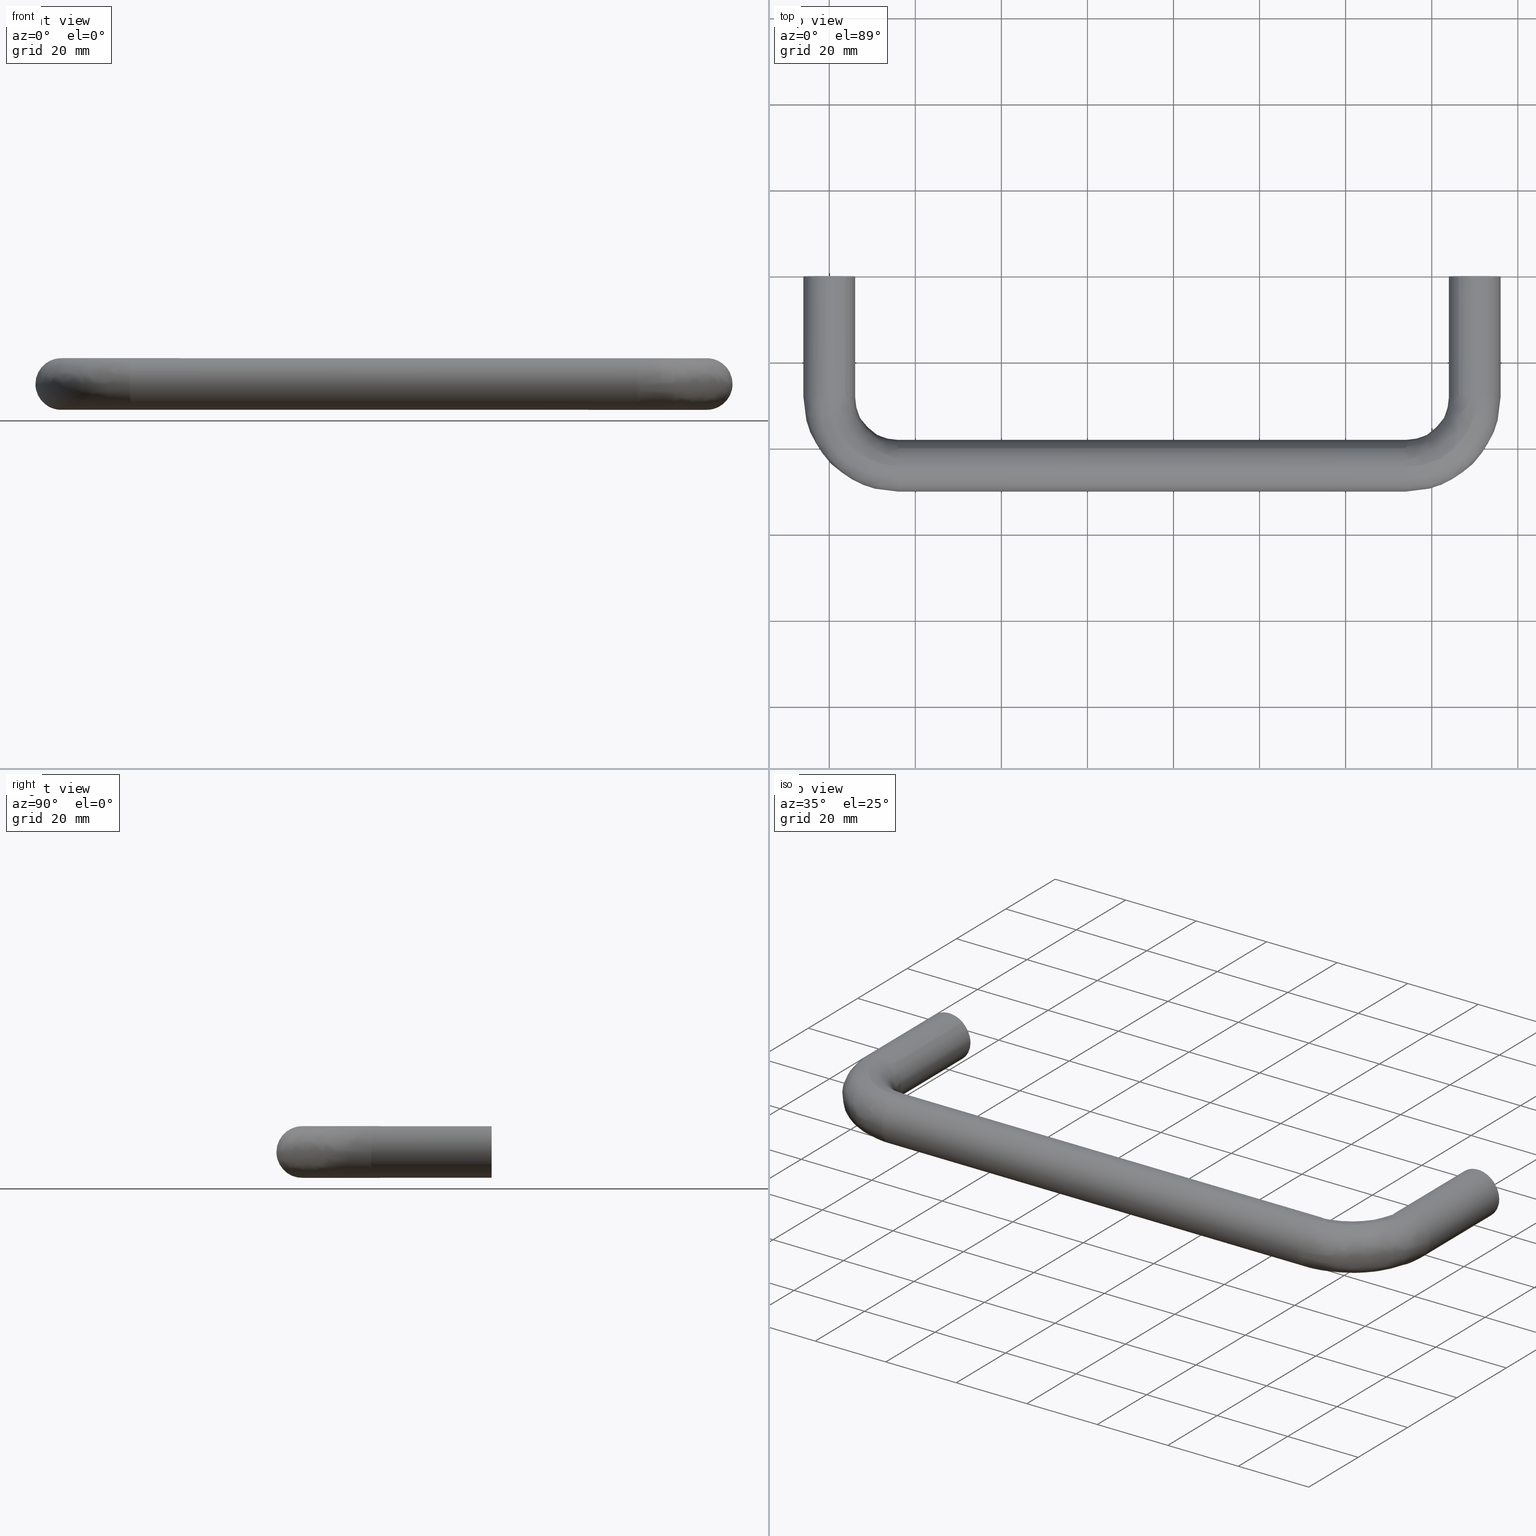
[diagram: canonical four-view strip — front | top / right | iso, engineering-drawing reading convention]
A machine part, canonical four-view strip (front | top / right | iso — engineering-drawing reading convention). The complete STEP part file that produces these views, byte-faithful:
ISO-10303-21;
HEADER;
/****************************************************************
 * Generated by software with PDE/Lib inside                    *
 * PDElib Version 4.4.1-0003, patched  Thursday August 19 11:58 *
 * International Technegroup Inc. (www.iti-oh.com)              *
 ****************************************************************/
FILE_DESCRIPTION((''),'2;1');
FILE_NAME('','2005-10-12T14:17:57',(''),(''),'','CADfix','');
FILE_SCHEMA(('AUTOMOTIVE_DESIGN'));
ENDSEC;
DATA;
#5=APPLICATION_CONTEXT('automotive design');
#6=APPLICATION_PROTOCOL_DEFINITION('Draft International Standard','automotive_design',1998,#5);
#7=PRODUCT_CONTEXT('None',#5,'mechanical');
#8=PRODUCT('pull','','None',(#7));
#9=PRODUCT_RELATED_PRODUCT_CATEGORY('part','description',(#8));
#10=PRODUCT_DEFINITION_FORMATION('None','None',#8);
#11=PRODUCT_DEFINITION_CONTEXT('part definition',#5,'design');
#12=PRODUCT_DEFINITION('None','None',#10,#11);
#18=(NAMED_UNIT(*)PLANE_ANGLE_UNIT()SI_UNIT($,.RADIAN.));
#19=DIMENSIONAL_EXPONENTS(0.0,0.0,0.0,0.0,0.0,0.0,0.0);
#20=PLANE_ANGLE_MEASURE_WITH_UNIT(PLANE_ANGLE_MEASURE(0.017453292500000),#18);
#24=(CONVERSION_BASED_UNIT('DEGREE',#20)NAMED_UNIT(#19)PLANE_ANGLE_UNIT());
#28=(NAMED_UNIT(*)SI_UNIT($,.STERADIAN.)SOLID_ANGLE_UNIT());
#32=(LENGTH_UNIT()NAMED_UNIT(*)SI_UNIT(.MILLI.,.METRE.));
#34=UNCERTAINTY_MEASURE_WITH_UNIT(LENGTH_MEASURE(0.001000000000000),#32,'DISTANCE_ACCURACY_VALUE','');
#36=(GEOMETRIC_REPRESENTATION_CONTEXT(3)GLOBAL_UNCERTAINTY_ASSIGNED_CONTEXT((#34))GLOBAL_UNIT_ASSIGNED_CONTEXT((#24,#28,#32))REPRESENTATION_CONTEXT('None','None'));
#37=AXIS2_PLACEMENT_3D('',#38,#39,#40);
#38=CARTESIAN_POINT('',(0.0,0.0,0.0));
#39=DIRECTION('',(0.0,0.0,1.0));
#40=DIRECTION('',(1.0,0.0,0.0));
#41=ADVANCED_BREP_SHAPE_REPRESENTATION('',(#37,#1347),#36);
#42=PRODUCT_DEFINITION_SHAPE('','',#12);
#43=SHAPE_DEFINITION_REPRESENTATION(#42,#41);
#44=CARTESIAN_POINT('',(-3.987669334932511,-10.250000000000000,0.313836382911382));
#45=CARTESIAN_POINT('',(-3.673832952021128,-10.250000000000002,4.301505717843893));
#46=CARTESIAN_POINT('',(0.313836382911382,-10.250000000000000,3.987669334932511));
#47=CARTESIAN_POINT('',(4.301505717843893,-10.250000000000002,3.673832952021128));
#48=CARTESIAN_POINT('',(3.987669334932511,-10.250000000000000,-0.313836382911382));
#49=CARTESIAN_POINT('',(-3.987669334932511,0.256250000000001,0.313836382911382));
#50=CARTESIAN_POINT('',(-3.673832952021128,0.256250000000001,4.301505717843893));
#51=CARTESIAN_POINT('',(0.313836382911382,0.256250000000001,3.987669334932511));
#52=CARTESIAN_POINT('',(4.301505717843893,0.256250000000001,3.673832952021128));
#53=CARTESIAN_POINT('',(3.987669334932511,0.256250000000001,-0.313836382911382));
#61=(BOUNDED_SURFACE()B_SPLINE_SURFACE(2,1,((#44,#49),(#45,#50),(#46,#51),(#47,#52),(#48,#53)),.UNSPECIFIED.,.F.,.F.,.U.)B_SPLINE_SURFACE_WITH_KNOTS((3,2,3),(2,2),(0.0,6.627416997969518,13.254833995939039),(0.0,10.506250000000000),.UNSPECIFIED.)GEOMETRIC_REPRESENTATION_ITEM()RATIONAL_B_SPLINE_SURFACE(((1.0,1.0),(0.707106781186548,0.707106781186548),(1.0,1.0),(0.707106781186548,0.707106781186548),(1.0,1.0)))REPRESENTATION_ITEM('')SURFACE());
#62=CARTESIAN_POINT('',(0.0,-10.0,4.0));
#63=VERTEX_POINT('',#62);
#64=CARTESIAN_POINT('',(-3.987669334881114,-10.0,0.313836383564439));
#65=VERTEX_POINT('',#64);
#66=CARTESIAN_POINT('',(0.0,-10.0,4.0));
#67=CARTESIAN_POINT('',(-3.697561965417989,-10.0,4.000000000000001));
#68=CARTESIAN_POINT('',(-3.987669334881115,-10.0,0.313836383564439));
#76=(BOUNDED_CURVE()B_SPLINE_CURVE(2,(#66,#67,#68),.UNSPECIFIED.,.F.,.U.)B_SPLINE_CURVE_WITH_KNOTS((3,3),(0.0,0.236331300576619),.UNSPECIFIED.)CURVE()GEOMETRIC_REPRESENTATION_ITEM()RATIONAL_B_SPLINE_CURVE((1.0,0.723120658670978,0.969723356054639))REPRESENTATION_ITEM(''));
#77=EDGE_CURVE('',#63,#65,#76,.T.);
#78=ORIENTED_EDGE('',*,*,#77,.T.);
#79=CARTESIAN_POINT('',(-3.987669334881114,-2.775558E-017,0.313836383564439));
#80=VERTEX_POINT('',#79);
#81=CARTESIAN_POINT('',(-3.987669334881114,-10.0,0.313836383564439));
#82=CARTESIAN_POINT('',(-3.987669334881114,-2.775558E-017,0.313836383564439));
#83=QUASI_UNIFORM_CURVE('',1,(#81,#82),.UNSPECIFIED.,.F.,.U.);
#84=EDGE_CURVE('',#65,#80,#83,.T.);
#85=ORIENTED_EDGE('',*,*,#84,.T.);
#86=CARTESIAN_POINT('',(0.0,0.0,4.0));
#87=VERTEX_POINT('',#86);
#88=CARTESIAN_POINT('',(0.0,0.0,4.0));
#89=CARTESIAN_POINT('',(-3.697561965417989,0.0,4.000000000000001));
#90=CARTESIAN_POINT('',(-3.987669334881115,-2.775558E-017,0.313836383564439));
#98=(BOUNDED_CURVE()B_SPLINE_CURVE(2,(#88,#89,#90),.UNSPECIFIED.,.F.,.U.)B_SPLINE_CURVE_WITH_KNOTS((3,3),(0.0,0.236331300576619),.UNSPECIFIED.)CURVE()GEOMETRIC_REPRESENTATION_ITEM()RATIONAL_B_SPLINE_CURVE((1.0,0.723120658670978,0.969723356054639))REPRESENTATION_ITEM(''));
#99=EDGE_CURVE('',#87,#80,#98,.T.);
#100=ORIENTED_EDGE('',*,*,#99,.F.);
#101=CARTESIAN_POINT('',(3.987669334881114,-2.775558E-017,-0.313836383564439));
#102=VERTEX_POINT('',#101);
#103=CARTESIAN_POINT('',(3.987669334881115,-2.775558E-017,-0.313836383564439));
#104=CARTESIAN_POINT('',(4.000000000000001,0.0,-0.157160428686767));
#105=CARTESIAN_POINT('',(4.0,0.0,0.0));
#106=CARTESIAN_POINT('',(4.000000000000000,0.0,4.000000000000000));
#107=CARTESIAN_POINT('',(0.0,0.0,4.0));
#115=(BOUNDED_CURVE()B_SPLINE_CURVE(2,(#103,#104,#105,#106,#107),.UNSPECIFIED.,.F.,.U.)B_SPLINE_CURVE_WITH_KNOTS((3,2,3),(0.736331300576619,0.750000000000000,1.0),.UNSPECIFIED.)CURVE()GEOMETRIC_REPRESENTATION_ITEM()RATIONAL_B_SPLINE_CURVE((0.969723356054639,0.983986122515569,1.0,0.707106781186548,1.0))REPRESENTATION_ITEM(''));
#116=EDGE_CURVE('',#102,#87,#115,.T.);
#117=ORIENTED_EDGE('',*,*,#116,.F.);
#118=CARTESIAN_POINT('',(3.987669334881114,-10.0,-0.313836383564439));
#119=VERTEX_POINT('',#118);
#120=CARTESIAN_POINT('',(3.987669334881114,-10.0,-0.313836383564439));
#121=CARTESIAN_POINT('',(3.987669334881114,-2.775558E-017,-0.313836383564439));
#122=QUASI_UNIFORM_CURVE('',1,(#120,#121),.UNSPECIFIED.,.F.,.U.);
#123=EDGE_CURVE('',#119,#102,#122,.T.);
#124=ORIENTED_EDGE('',*,*,#123,.F.);
#125=CARTESIAN_POINT('',(3.987669334881115,-10.0,-0.313836383564439));
#126=CARTESIAN_POINT('',(4.000000000000001,-10.0,-0.157160428686767));
#127=CARTESIAN_POINT('',(4.0,-10.0,0.0));
#128=CARTESIAN_POINT('',(4.000000000000000,-10.000000000000002,4.000000000000000));
#129=CARTESIAN_POINT('',(0.0,-10.0,4.0));
#137=(BOUNDED_CURVE()B_SPLINE_CURVE(2,(#125,#126,#127,#128,#129),.UNSPECIFIED.,.F.,.U.)B_SPLINE_CURVE_WITH_KNOTS((3,2,3),(0.736331300576619,0.750000000000000,1.0),.UNSPECIFIED.)CURVE()GEOMETRIC_REPRESENTATION_ITEM()RATIONAL_B_SPLINE_CURVE((0.969723356054639,0.983986122515569,1.0,0.707106781186548,1.0))REPRESENTATION_ITEM(''));
#138=EDGE_CURVE('',#119,#63,#137,.T.);
#139=ORIENTED_EDGE('',*,*,#138,.T.);
#140=EDGE_LOOP('',(#78,#85,#100,#117,#124,#139));
#141=FACE_OUTER_BOUND('',#140,.T.);
#142=ADVANCED_FACE('',(#141),#61,.F.);
#143=CARTESIAN_POINT('',(3.987669334932511,-10.250000000000000,-0.313836382911382));
#144=CARTESIAN_POINT('',(3.673832952021128,-10.250000000000002,-4.301505717843893));
#145=CARTESIAN_POINT('',(-0.313836382911382,-10.250000000000000,-3.987669334932511));
#146=CARTESIAN_POINT('',(-4.301505717843893,-10.250000000000002,-3.673832952021128));
#147=CARTESIAN_POINT('',(-3.987669334932511,-10.250000000000000,0.313836382911382));
#148=CARTESIAN_POINT('',(3.987669334932511,0.256250000000001,-0.313836382911382));
#149=CARTESIAN_POINT('',(3.673832952021128,0.256250000000001,-4.301505717843893));
#150=CARTESIAN_POINT('',(-0.313836382911382,0.256250000000001,-3.987669334932511));
#151=CARTESIAN_POINT('',(-4.301505717843893,0.256250000000001,-3.673832952021128));
#152=CARTESIAN_POINT('',(-3.987669334932511,0.256250000000001,0.313836382911382));
#160=(BOUNDED_SURFACE()B_SPLINE_SURFACE(2,1,((#143,#148),(#144,#149),(#145,#150),(#146,#151),(#147,#152)),.UNSPECIFIED.,.F.,.F.,.U.)B_SPLINE_SURFACE_WITH_KNOTS((3,2,3),(2,2),(0.0,6.627416997969518,13.254833995939039),(0.0,10.506250000000000),.UNSPECIFIED.)GEOMETRIC_REPRESENTATION_ITEM()RATIONAL_B_SPLINE_SURFACE(((1.0,1.0),(0.707106781186548,0.707106781186548),(1.0,1.0),(0.707106781186548,0.707106781186548),(1.0,1.0)))REPRESENTATION_ITEM('')SURFACE());
#161=CARTESIAN_POINT('',(0.0,-10.0,-4.0));
#162=VERTEX_POINT('',#161);
#163=CARTESIAN_POINT('',(-3.987669334881115,-10.0,0.313836383564439));
#164=CARTESIAN_POINT('',(-4.000000000000001,-10.0,0.157160428686767));
#165=CARTESIAN_POINT('',(-4.0,-10.0,0.0));
#166=CARTESIAN_POINT('',(-4.000000000000000,-10.000000000000002,-4.000000000000000));
#167=CARTESIAN_POINT('',(0.0,-10.0,-4.0));
#175=(BOUNDED_CURVE()B_SPLINE_CURVE(2,(#163,#164,#165,#166,#167),.UNSPECIFIED.,.F.,.U.)B_SPLINE_CURVE_WITH_KNOTS((3,2,3),(0.236331300576619,0.250000000000000,0.500000000000000),.UNSPECIFIED.)CURVE()GEOMETRIC_REPRESENTATION_ITEM()RATIONAL_B_SPLINE_CURVE((0.969723356054639,0.983986122515569,1.0,0.707106781186548,1.0))REPRESENTATION_ITEM(''));
#176=EDGE_CURVE('',#65,#162,#175,.T.);
#177=ORIENTED_EDGE('',*,*,#176,.T.);
#178=CARTESIAN_POINT('',(0.0,-10.0,-4.0));
#179=CARTESIAN_POINT('',(3.697561965417966,-10.0,-4.0));
#180=CARTESIAN_POINT('',(3.987669334881115,-10.0,-0.313836383564439));
#188=(BOUNDED_CURVE()B_SPLINE_CURVE(2,(#178,#179,#180),.UNSPECIFIED.,.F.,.U.)B_SPLINE_CURVE_WITH_KNOTS((3,3),(0.500000000000000,0.736331300576618),.UNSPECIFIED.)CURVE()GEOMETRIC_REPRESENTATION_ITEM()RATIONAL_B_SPLINE_CURVE((1.0,0.723120658670980,0.969723356054636))REPRESENTATION_ITEM(''));
#189=EDGE_CURVE('',#162,#119,#188,.T.);
#190=ORIENTED_EDGE('',*,*,#189,.T.);
#191=ORIENTED_EDGE('',*,*,#123,.T.);
#192=CARTESIAN_POINT('',(0.0,0.0,-4.0));
#193=VERTEX_POINT('',#192);
#194=CARTESIAN_POINT('',(0.0,0.0,-4.0));
#195=CARTESIAN_POINT('',(3.697561965417966,0.0,-4.0));
#196=CARTESIAN_POINT('',(3.987669334881115,-2.775558E-017,-0.313836383564439));
#204=(BOUNDED_CURVE()B_SPLINE_CURVE(2,(#194,#195,#196),.UNSPECIFIED.,.F.,.U.)B_SPLINE_CURVE_WITH_KNOTS((3,3),(0.500000000000000,0.736331300576618),.UNSPECIFIED.)CURVE()GEOMETRIC_REPRESENTATION_ITEM()RATIONAL_B_SPLINE_CURVE((1.0,0.723120658670980,0.969723356054636))REPRESENTATION_ITEM(''));
#205=EDGE_CURVE('',#193,#102,#204,.T.);
#206=ORIENTED_EDGE('',*,*,#205,.F.);
#207=CARTESIAN_POINT('',(-3.987669334881115,-2.775558E-017,0.313836383564439));
#208=CARTESIAN_POINT('',(-4.000000000000001,0.0,0.157160428686767));
#209=CARTESIAN_POINT('',(-4.0,0.0,0.0));
#210=CARTESIAN_POINT('',(-4.000000000000000,0.0,-4.000000000000000));
#211=CARTESIAN_POINT('',(0.0,0.0,-4.0));
#219=(BOUNDED_CURVE()B_SPLINE_CURVE(2,(#207,#208,#209,#210,#211),.UNSPECIFIED.,.F.,.U.)B_SPLINE_CURVE_WITH_KNOTS((3,2,3),(0.236331300576619,0.250000000000000,0.500000000000000),.UNSPECIFIED.)CURVE()GEOMETRIC_REPRESENTATION_ITEM()RATIONAL_B_SPLINE_CURVE((0.969723356054639,0.983986122515569,1.0,0.707106781186548,1.0))REPRESENTATION_ITEM(''));
#220=EDGE_CURVE('',#80,#193,#219,.T.);
#221=ORIENTED_EDGE('',*,*,#220,.F.);
#222=ORIENTED_EDGE('',*,*,#84,.F.);
#223=EDGE_LOOP('',(#177,#190,#191,#206,#221,#222));
#224=FACE_OUTER_BOUND('',#223,.T.);
#225=ADVANCED_FACE('',(#224),#160,.F.);
#226=CARTESIAN_POINT('',(146.012330665067510,-10.250000000000000,0.313836382911382));
#227=CARTESIAN_POINT('',(146.326167047978880,-10.250000000000002,4.301505717843893));
#228=CARTESIAN_POINT('',(150.313836382911400,-10.250000000000000,3.987669334932511));
#229=CARTESIAN_POINT('',(154.301505717843950,-10.250000000000002,3.673832952021128));
#230=CARTESIAN_POINT('',(153.987669334932490,-10.250000000000000,-0.313836382911382));
#231=CARTESIAN_POINT('',(146.012330665067510,0.256250000000001,0.313836382911382));
#232=CARTESIAN_POINT('',(146.326167047978880,0.256250000000001,4.301505717843893));
#233=CARTESIAN_POINT('',(150.313836382911400,0.256250000000001,3.987669334932511));
#234=CARTESIAN_POINT('',(154.301505717843950,0.256250000000001,3.673832952021128));
#235=CARTESIAN_POINT('',(153.987669334932490,0.256250000000001,-0.313836382911382));
#243=(BOUNDED_SURFACE()B_SPLINE_SURFACE(2,1,((#226,#231),(#227,#232),(#228,#233),(#229,#234),(#230,#235)),.UNSPECIFIED.,.F.,.F.,.U.)B_SPLINE_SURFACE_WITH_KNOTS((3,2,3),(2,2),(0.0,6.627416997969530,13.254833995939061),(0.0,10.506250000000000),.UNSPECIFIED.)GEOMETRIC_REPRESENTATION_ITEM()RATIONAL_B_SPLINE_SURFACE(((1.0,1.0),(0.707106781186548,0.707106781186548),(1.0,1.0),(0.707106781186548,0.707106781186548),(1.0,1.0)))REPRESENTATION_ITEM('')SURFACE());
#244=CARTESIAN_POINT('',(150.0,-10.0,4.0));
#245=VERTEX_POINT('',#244);
#246=CARTESIAN_POINT('',(146.012330665118900,-9.999999999999998,0.313836383564438));
#247=VERTEX_POINT('',#246);
#248=CARTESIAN_POINT('',(150.0,-10.0,4.0));
#249=CARTESIAN_POINT('',(146.302438034581940,-10.0,4.000000000000001));
#250=CARTESIAN_POINT('',(146.012330665118870,-9.999999999999998,0.313836383564438));
#258=(BOUNDED_CURVE()B_SPLINE_CURVE(2,(#248,#249,#250),.UNSPECIFIED.,.F.,.U.)B_SPLINE_CURVE_WITH_KNOTS((3,3),(0.0,0.236331300576619),.UNSPECIFIED.)CURVE()GEOMETRIC_REPRESENTATION_ITEM()RATIONAL_B_SPLINE_CURVE((1.0,0.723120658670978,0.969723356054639))REPRESENTATION_ITEM(''));
#259=EDGE_CURVE('',#245,#247,#258,.T.);
#260=ORIENTED_EDGE('',*,*,#259,.T.);
#261=CARTESIAN_POINT('',(146.012330665118900,-2.775558E-017,0.313836383564438));
#262=VERTEX_POINT('',#261);
#263=CARTESIAN_POINT('',(146.012330665118900,-9.999999999999998,0.313836383564438));
#264=CARTESIAN_POINT('',(146.012330665118900,-2.775558E-017,0.313836383564438));
#265=QUASI_UNIFORM_CURVE('',1,(#263,#264),.UNSPECIFIED.,.F.,.U.);
#266=EDGE_CURVE('',#247,#262,#265,.T.);
#267=ORIENTED_EDGE('',*,*,#266,.T.);
#268=CARTESIAN_POINT('',(150.0,0.0,4.0));
#269=VERTEX_POINT('',#268);
#270=CARTESIAN_POINT('',(150.0,0.0,4.0));
#271=CARTESIAN_POINT('',(146.302438034581940,0.0,4.000000000000001));
#272=CARTESIAN_POINT('',(146.012330665118870,-2.775558E-017,0.313836383564438));
#280=(BOUNDED_CURVE()B_SPLINE_CURVE(2,(#270,#271,#272),.UNSPECIFIED.,.F.,.U.)B_SPLINE_CURVE_WITH_KNOTS((3,3),(0.0,0.236331300576619),.UNSPECIFIED.)CURVE()GEOMETRIC_REPRESENTATION_ITEM()RATIONAL_B_SPLINE_CURVE((1.0,0.723120658670978,0.969723356054639))REPRESENTATION_ITEM(''));
#281=EDGE_CURVE('',#269,#262,#280,.T.);
#282=ORIENTED_EDGE('',*,*,#281,.F.);
#283=CARTESIAN_POINT('',(153.987669334881100,-2.775558E-017,-0.313836383564437));
#284=VERTEX_POINT('',#283);
#285=CARTESIAN_POINT('',(153.987669334881130,-2.775558E-017,-0.313836383564437));
#286=CARTESIAN_POINT('',(154.000000000000030,0.0,-0.157160428686765));
#287=CARTESIAN_POINT('',(154.0,0.0,0.0));
#288=CARTESIAN_POINT('',(153.999999999999970,0.0,4.000000000000000));
#289=CARTESIAN_POINT('',(150.0,0.0,4.0));
#297=(BOUNDED_CURVE()B_SPLINE_CURVE(2,(#285,#286,#287,#288,#289),.UNSPECIFIED.,.F.,.U.)B_SPLINE_CURVE_WITH_KNOTS((3,2,3),(0.736331300576619,0.750000000000000,1.0),.UNSPECIFIED.)CURVE()GEOMETRIC_REPRESENTATION_ITEM()RATIONAL_B_SPLINE_CURVE((0.969723356054639,0.983986122515569,1.0,0.707106781186548,1.0))REPRESENTATION_ITEM(''));
#298=EDGE_CURVE('',#284,#269,#297,.T.);
#299=ORIENTED_EDGE('',*,*,#298,.F.);
#300=CARTESIAN_POINT('',(153.987669334881100,-10.0,-0.313836383564437));
#301=VERTEX_POINT('',#300);
#302=CARTESIAN_POINT('',(153.987669334881100,-10.0,-0.313836383564437));
#303=CARTESIAN_POINT('',(153.987669334881100,-2.775558E-017,-0.313836383564437));
#304=QUASI_UNIFORM_CURVE('',1,(#302,#303),.UNSPECIFIED.,.F.,.U.);
#305=EDGE_CURVE('',#301,#284,#304,.T.);
#306=ORIENTED_EDGE('',*,*,#305,.F.);
#307=CARTESIAN_POINT('',(153.987669334881130,-9.999999999999998,-0.313836383564437));
#308=CARTESIAN_POINT('',(154.000000000000030,-10.000000000000002,-0.157160428686765));
#309=CARTESIAN_POINT('',(154.0,-10.0,0.0));
#310=CARTESIAN_POINT('',(153.999999999999970,-10.000000000000002,4.000000000000000));
#311=CARTESIAN_POINT('',(150.0,-10.0,4.0));
#319=(BOUNDED_CURVE()B_SPLINE_CURVE(2,(#307,#308,#309,#310,#311),.UNSPECIFIED.,.F.,.U.)B_SPLINE_CURVE_WITH_KNOTS((3,2,3),(0.736331300576619,0.750000000000000,1.0),.UNSPECIFIED.)CURVE()GEOMETRIC_REPRESENTATION_ITEM()RATIONAL_B_SPLINE_CURVE((0.969723356054639,0.983986122515569,1.0,0.707106781186548,1.0))REPRESENTATION_ITEM(''));
#320=EDGE_CURVE('',#301,#245,#319,.T.);
#321=ORIENTED_EDGE('',*,*,#320,.T.);
#322=EDGE_LOOP('',(#260,#267,#282,#299,#306,#321));
#323=FACE_OUTER_BOUND('',#322,.T.);
#324=ADVANCED_FACE('',(#323),#243,.F.);
#325=CARTESIAN_POINT('',(153.987669334932490,-10.250000000000000,-0.313836382911382));
#326=CARTESIAN_POINT('',(153.673832952021170,-10.250000000000002,-4.301505717843893));
#327=CARTESIAN_POINT('',(149.686163617088600,-10.250000000000000,-3.987669334932511));
#328=CARTESIAN_POINT('',(145.698494282156100,-10.250000000000002,-3.673832952021128));
#329=CARTESIAN_POINT('',(146.012330665067510,-10.250000000000000,0.313836382911382));
#330=CARTESIAN_POINT('',(153.987669334932490,0.256250000000001,-0.313836382911382));
#331=CARTESIAN_POINT('',(153.673832952021170,0.256250000000001,-4.301505717843893));
#332=CARTESIAN_POINT('',(149.686163617088600,0.256250000000001,-3.987669334932511));
#333=CARTESIAN_POINT('',(145.698494282156100,0.256250000000001,-3.673832952021128));
#334=CARTESIAN_POINT('',(146.012330665067510,0.256250000000001,0.313836382911382));
#342=(BOUNDED_SURFACE()B_SPLINE_SURFACE(2,1,((#325,#330),(#326,#331),(#327,#332),(#328,#333),(#329,#334)),.UNSPECIFIED.,.F.,.F.,.U.)B_SPLINE_SURFACE_WITH_KNOTS((3,2,3),(2,2),(0.0,6.627416997969530,13.254833995939061),(0.0,10.506250000000000),.UNSPECIFIED.)GEOMETRIC_REPRESENTATION_ITEM()RATIONAL_B_SPLINE_SURFACE(((1.0,1.0),(0.707106781186548,0.707106781186548),(1.0,1.0),(0.707106781186548,0.707106781186548),(1.0,1.0)))REPRESENTATION_ITEM('')SURFACE());
#343=CARTESIAN_POINT('',(150.0,-10.0,-4.0));
#344=VERTEX_POINT('',#343);
#345=CARTESIAN_POINT('',(146.012330665118870,-9.999999999999998,0.313836383564438));
#346=CARTESIAN_POINT('',(146.0,-10.0,0.157160428686767));
#347=CARTESIAN_POINT('',(146.0,-10.0,0.0));
#348=CARTESIAN_POINT('',(146.000000000000090,-10.000000000000002,-4.000000000000000));
#349=CARTESIAN_POINT('',(150.0,-10.0,-4.0));
#357=(BOUNDED_CURVE()B_SPLINE_CURVE(2,(#345,#346,#347,#348,#349),.UNSPECIFIED.,.F.,.U.)B_SPLINE_CURVE_WITH_KNOTS((3,2,3),(0.236331300576619,0.250000000000000,0.500000000000000),.UNSPECIFIED.)CURVE()GEOMETRIC_REPRESENTATION_ITEM()RATIONAL_B_SPLINE_CURVE((0.969723356054639,0.983986122515569,1.0,0.707106781186548,1.0))REPRESENTATION_ITEM(''));
#358=EDGE_CURVE('',#247,#344,#357,.T.);
#359=ORIENTED_EDGE('',*,*,#358,.T.);
#360=CARTESIAN_POINT('',(150.0,-10.0,-4.0));
#361=CARTESIAN_POINT('',(153.697561965418030,-10.0,-4.000000000000000));
#362=CARTESIAN_POINT('',(153.987669334881080,-10.0,-0.313836383564437));
#370=(BOUNDED_CURVE()B_SPLINE_CURVE(2,(#360,#361,#362),.UNSPECIFIED.,.F.,.U.)B_SPLINE_CURVE_WITH_KNOTS((3,3),(0.500000000000000,0.736331300576620),.UNSPECIFIED.)CURVE()GEOMETRIC_REPRESENTATION_ITEM()RATIONAL_B_SPLINE_CURVE((1.0,0.723120658670977,0.969723356054641))REPRESENTATION_ITEM(''));
#371=EDGE_CURVE('',#344,#301,#370,.T.);
#372=ORIENTED_EDGE('',*,*,#371,.T.);
#373=ORIENTED_EDGE('',*,*,#305,.T.);
#374=CARTESIAN_POINT('',(150.0,0.0,-4.0));
#375=VERTEX_POINT('',#374);
#376=CARTESIAN_POINT('',(150.0,0.0,-4.0));
#377=CARTESIAN_POINT('',(153.697561965418030,0.0,-4.000000000000000));
#378=CARTESIAN_POINT('',(153.987669334881190,-2.775558E-017,-0.313836383564437));
#386=(BOUNDED_CURVE()B_SPLINE_CURVE(2,(#376,#377,#378),.UNSPECIFIED.,.F.,.U.)B_SPLINE_CURVE_WITH_KNOTS((3,3),(0.500000000000000,0.736331300576620),.UNSPECIFIED.)CURVE()GEOMETRIC_REPRESENTATION_ITEM()RATIONAL_B_SPLINE_CURVE((1.0,0.723120658670977,0.969723356054641))REPRESENTATION_ITEM(''));
#387=EDGE_CURVE('',#375,#284,#386,.T.);
#388=ORIENTED_EDGE('',*,*,#387,.F.);
#389=CARTESIAN_POINT('',(146.012330665118870,-2.775558E-017,0.313836383564438));
#390=CARTESIAN_POINT('',(145.999999999999970,0.0,0.157160428686766));
#391=CARTESIAN_POINT('',(146.0,0.0,0.0));
#392=CARTESIAN_POINT('',(146.000000000000090,0.0,-4.000000000000000));
#393=CARTESIAN_POINT('',(150.0,0.0,-4.0));
#401=(BOUNDED_CURVE()B_SPLINE_CURVE(2,(#389,#390,#391,#392,#393),.UNSPECIFIED.,.F.,.U.)B_SPLINE_CURVE_WITH_KNOTS((3,2,3),(0.236331300576619,0.250000000000000,0.500000000000000),.UNSPECIFIED.)CURVE()GEOMETRIC_REPRESENTATION_ITEM()RATIONAL_B_SPLINE_CURVE((0.969723356054639,0.983986122515569,1.0,0.707106781186548,1.0))REPRESENTATION_ITEM(''));
#402=EDGE_CURVE('',#262,#375,#401,.T.);
#403=ORIENTED_EDGE('',*,*,#402,.F.);
#404=ORIENTED_EDGE('',*,*,#266,.F.);
#405=EDGE_LOOP('',(#359,#372,#373,#388,#403,#404));
#406=FACE_OUTER_BOUND('',#405,.T.);
#407=ADVANCED_FACE('',(#406),#342,.F.);
#408=CARTESIAN_POINT('',(153.735087819825710,-28.700000000863149,-4.695648941114484));
#409=CARTESIAN_POINT('',(149.039438878711250,-28.700000000863156,-8.430736760940201));
#410=CARTESIAN_POINT('',(145.304351058885490,-28.700000000863149,-3.735087819825715));
#411=CARTESIAN_POINT('',(141.569263239059780,-28.700000000863156,0.960561121288768));
#412=CARTESIAN_POINT('',(146.264912180174290,-28.700000000863149,4.695648941114484));
#413=CARTESIAN_POINT('',(153.735087819825710,0.717500000021598,-4.695648941114484));
#414=CARTESIAN_POINT('',(149.039438878711250,0.717500000021598,-8.430736760940201));
#415=CARTESIAN_POINT('',(145.304351058885490,0.717500000021598,-3.735087819825715));
#416=CARTESIAN_POINT('',(141.569263239059780,0.717500000021598,0.960561121288768));
#417=CARTESIAN_POINT('',(146.264912180174290,0.717500000021598,4.695648941114484));
#425=(BOUNDED_SURFACE()B_SPLINE_SURFACE(2,1,((#408,#413),(#409,#414),(#410,#415),(#411,#416),(#412,#417)),.UNSPECIFIED.,.F.,.F.,.U.)B_SPLINE_SURFACE_WITH_KNOTS((3,2,3),(2,2),(0.0,9.941125496954282,19.882250993908560),(0.0,29.417500000884750),.UNSPECIFIED.)GEOMETRIC_REPRESENTATION_ITEM()RATIONAL_B_SPLINE_SURFACE(((1.0,1.0),(0.707106781186548,0.707106781186548),(1.0,1.0),(0.707106781186548,0.707106781186548),(1.0,1.0)))REPRESENTATION_ITEM('')SURFACE());
#426=CARTESIAN_POINT('',(149.924603760638690,-27.999999999982361,-5.999526265222126));
#427=VERTEX_POINT('',#426);
#428=CARTESIAN_POINT('',(153.735087819826500,-28.0,-4.695648941113861));
#429=VERTEX_POINT('',#428);
#430=CARTESIAN_POINT('',(149.924603760638690,-27.999999999982361,-5.999526265222126));
#431=CARTESIAN_POINT('',(149.962300391987500,-28.0,-6.0));
#432=CARTESIAN_POINT('',(150.0,-28.0,-6.0));
#433=CARTESIAN_POINT('',(152.095293800530380,-27.999999999999996,-6.000000000000001));
#434=CARTESIAN_POINT('',(153.735087819826480,-28.000000000000004,-4.695648941113861));
#442=(BOUNDED_CURVE()B_SPLINE_CURVE(2,(#430,#431,#432,#433,#434),.UNSPECIFIED.,.F.,.U.)B_SPLINE_CURVE_WITH_KNOTS((3,2,3),(0.247784295918142,0.250000000000000,0.357863877391496),.UNSPECIFIED.)CURVE()GEOMETRIC_REPRESENTATION_ITEM()RATIONAL_B_SPLINE_CURVE((0.994854295635758,0.997404141198106,1.0,0.873629607028421,0.856305618644054))REPRESENTATION_ITEM(''));
#443=EDGE_CURVE('',#427,#429,#442,.T.);
#444=ORIENTED_EDGE('',*,*,#443,.F.);
#445=CARTESIAN_POINT('',(144.0,-28.0,0.0));
#446=VERTEX_POINT('',#445);
#447=CARTESIAN_POINT('',(144.0,-28.0,0.0));
#448=CARTESIAN_POINT('',(144.000000000000030,-27.999999999999996,-5.925071579323057));
#449=CARTESIAN_POINT('',(149.924603760638690,-27.999999999982361,-5.999526265222126));
#457=(BOUNDED_CURVE()B_SPLINE_CURVE(2,(#447,#448,#449),.UNSPECIFIED.,.F.,.U.)B_SPLINE_CURVE_WITH_KNOTS((3,3),(0.0,0.247784295918142),.UNSPECIFIED.)CURVE()GEOMETRIC_REPRESENTATION_ITEM()RATIONAL_B_SPLINE_CURVE((1.0,0.709702639988442,0.994854295635758))REPRESENTATION_ITEM(''));
#458=EDGE_CURVE('',#446,#427,#457,.T.);
#459=ORIENTED_EDGE('',*,*,#458,.F.);
#460=CARTESIAN_POINT('',(146.264912180173500,-28.0,4.695648941113861));
#461=VERTEX_POINT('',#460);
#462=CARTESIAN_POINT('',(146.264912180173500,-27.999999999999996,4.695648941113861));
#463=CARTESIAN_POINT('',(144.000000000000030,-27.999999999999996,2.894056444904190));
#464=CARTESIAN_POINT('',(144.0,-28.0,0.0));
#472=(BOUNDED_CURVE()B_SPLINE_CURVE(2,(#462,#463,#464),.UNSPECIFIED.,.F.,.U.)B_SPLINE_CURVE_WITH_KNOTS((3,3),(0.857863877391496,1.0),.UNSPECIFIED.)CURVE()GEOMETRIC_REPRESENTATION_ITEM()RATIONAL_B_SPLINE_CURVE((0.856305618644054,0.833477174158127,1.0))REPRESENTATION_ITEM(''));
#473=EDGE_CURVE('',#461,#446,#472,.T.);
#474=ORIENTED_EDGE('',*,*,#473,.F.);
#475=CARTESIAN_POINT('',(146.264915565131500,1.766642E-014,4.695651633626986));
#476=VERTEX_POINT('',#475);
#477=CARTESIAN_POINT('',(146.264912180173500,-28.0,4.695648941113861));
#478=CARTESIAN_POINT('',(146.264915565131500,1.766642E-014,4.695651633626986));
#479=QUASI_UNIFORM_CURVE('',1,(#477,#478),.UNSPECIFIED.,.F.,.U.);
#480=EDGE_CURVE('',#461,#476,#479,.T.);
#481=ORIENTED_EDGE('',*,*,#480,.T.);
#482=CARTESIAN_POINT('',(144.0,1.734723E-014,0.0));
#483=VERTEX_POINT('',#482);
#484=CARTESIAN_POINT('',(146.264915565131420,1.766642E-014,4.695651633626987));
#485=CARTESIAN_POINT('',(144.000000000000030,1.734723E-014,2.894059110659052));
#486=CARTESIAN_POINT('',(144.0,1.734723E-014,0.0));
#494=(BOUNDED_CURVE()B_SPLINE_CURVE(2,(#484,#485,#486),.UNSPECIFIED.,.F.,.U.)B_SPLINE_CURVE_WITH_KNOTS((3,3),(0.857863768269746,1.0),.UNSPECIFIED.)CURVE()GEOMETRIC_REPRESENTATION_ITEM()RATIONAL_B_SPLINE_CURVE((0.856305653696195,0.833477046314045,1.0))REPRESENTATION_ITEM(''));
#495=EDGE_CURVE('',#476,#483,#494,.T.);
#496=ORIENTED_EDGE('',*,*,#495,.T.);
#497=CARTESIAN_POINT('',(153.735084434868610,1.949829E-014,-4.695651633626984));
#498=VERTEX_POINT('',#497);
#499=CARTESIAN_POINT('',(144.0,1.734723E-014,0.0));
#500=CARTESIAN_POINT('',(144.000000000000060,1.734723E-014,-6.0));
#501=CARTESIAN_POINT('',(150.0,1.734723E-014,-6.0));
#502=CARTESIAN_POINT('',(152.095291374183860,1.734723E-014,-6.0));
#503=CARTESIAN_POINT('',(153.735084434868530,1.949829E-014,-4.695651633626985));
#511=(BOUNDED_CURVE()B_SPLINE_CURVE(2,(#499,#500,#501,#502,#503),.UNSPECIFIED.,.F.,.U.)B_SPLINE_CURVE_WITH_KNOTS((3,2,3),(0.0,0.250000000000000,0.357863768269746),.UNSPECIFIED.)CURVE()GEOMETRIC_REPRESENTATION_ITEM()RATIONAL_B_SPLINE_CURVE((1.0,0.707106781186548,1.0,0.873629734872503,0.856305653696195))REPRESENTATION_ITEM(''));
#512=EDGE_CURVE('',#483,#498,#511,.T.);
#513=ORIENTED_EDGE('',*,*,#512,.T.);
#514=CARTESIAN_POINT('',(153.735087819826500,-28.0,-4.695648941113861));
#515=CARTESIAN_POINT('',(153.735084434868610,1.949829E-014,-4.695651633626984));
#516=QUASI_UNIFORM_CURVE('',1,(#514,#515),.UNSPECIFIED.,.F.,.U.);
#517=EDGE_CURVE('',#429,#498,#516,.T.);
#518=ORIENTED_EDGE('',*,*,#517,.F.);
#519=EDGE_LOOP('',(#444,#459,#474,#481,#496,#513,#518));
#520=FACE_OUTER_BOUND('',#519,.T.);
#521=ADVANCED_FACE('',(#520),#425,.T.);
#522=CARTESIAN_POINT('',(146.264912180174290,-28.700000000863149,4.695648941114484));
#523=CARTESIAN_POINT('',(150.960561121288800,-28.700000000863156,8.430736760940201));
#524=CARTESIAN_POINT('',(154.695648941114510,-28.700000000863149,3.735087819825715));
#525=CARTESIAN_POINT('',(158.430736760940250,-28.700000000863156,-0.960561121288768));
#526=CARTESIAN_POINT('',(153.735087819825710,-28.700000000863149,-4.695648941114484));
#527=CARTESIAN_POINT('',(146.264912180174290,0.717500000021598,4.695648941114484));
#528=CARTESIAN_POINT('',(150.960561121288800,0.717500000021598,8.430736760940201));
#529=CARTESIAN_POINT('',(154.695648941114510,0.717500000021598,3.735087819825715));
#530=CARTESIAN_POINT('',(158.430736760940250,0.717500000021598,-0.960561121288768));
#531=CARTESIAN_POINT('',(153.735087819825710,0.717500000021598,-4.695648941114484));
#539=(BOUNDED_SURFACE()B_SPLINE_SURFACE(2,1,((#522,#527),(#523,#528),(#524,#529),(#525,#530),(#526,#531)),.UNSPECIFIED.,.F.,.F.,.U.)B_SPLINE_SURFACE_WITH_KNOTS((3,2,3),(2,2),(0.0,9.941125496954282,19.882250993908560),(0.0,29.417500000884750),.UNSPECIFIED.)GEOMETRIC_REPRESENTATION_ITEM()RATIONAL_B_SPLINE_SURFACE(((1.0,1.0),(0.707106781186548,0.707106781186548),(1.0,1.0),(0.707106781186548,0.707106781186548),(1.0,1.0)))REPRESENTATION_ITEM('')SURFACE());
#540=CARTESIAN_POINT('',(156.0,-28.0,0.0));
#541=VERTEX_POINT('',#540);
#542=CARTESIAN_POINT('',(153.735087819826500,-27.999999999999996,-4.695648941113861));
#543=CARTESIAN_POINT('',(156.000000000000030,-27.999999999999996,-2.894056444904190));
#544=CARTESIAN_POINT('',(156.0,-28.0,0.0));
#552=(BOUNDED_CURVE()B_SPLINE_CURVE(2,(#542,#543,#544),.UNSPECIFIED.,.F.,.U.)B_SPLINE_CURVE_WITH_KNOTS((3,3),(0.357863877391496,0.500000000000000),.UNSPECIFIED.)CURVE()GEOMETRIC_REPRESENTATION_ITEM()RATIONAL_B_SPLINE_CURVE((0.856305618644054,0.833477174158127,1.0))REPRESENTATION_ITEM(''));
#553=EDGE_CURVE('',#429,#541,#552,.T.);
#554=ORIENTED_EDGE('',*,*,#553,.F.);
#555=ORIENTED_EDGE('',*,*,#517,.T.);
#556=CARTESIAN_POINT('',(156.0,1.734723E-014,0.0));
#557=VERTEX_POINT('',#556);
#558=CARTESIAN_POINT('',(153.735084434868530,1.949829E-014,-4.695651633626985));
#559=CARTESIAN_POINT('',(155.999999999999970,1.734723E-014,-2.894059110659049));
#560=CARTESIAN_POINT('',(156.0,1.734723E-014,0.0));
#568=(BOUNDED_CURVE()B_SPLINE_CURVE(2,(#558,#559,#560),.UNSPECIFIED.,.F.,.U.)B_SPLINE_CURVE_WITH_KNOTS((3,3),(0.357863768269746,0.500000000000000),.UNSPECIFIED.)CURVE()GEOMETRIC_REPRESENTATION_ITEM()RATIONAL_B_SPLINE_CURVE((0.856305653696195,0.833477046314045,1.0))REPRESENTATION_ITEM(''));
#569=EDGE_CURVE('',#498,#557,#568,.T.);
#570=ORIENTED_EDGE('',*,*,#569,.T.);
#571=CARTESIAN_POINT('',(156.0,1.734723E-014,0.0));
#572=CARTESIAN_POINT('',(155.999999999999970,1.734723E-014,6.0));
#573=CARTESIAN_POINT('',(150.0,1.734723E-014,6.0));
#574=CARTESIAN_POINT('',(147.904708625816080,1.734723E-014,5.999999999999999));
#575=CARTESIAN_POINT('',(146.264915565131420,1.766642E-014,4.695651633626986));
#583=(BOUNDED_CURVE()B_SPLINE_CURVE(2,(#571,#572,#573,#574,#575),.UNSPECIFIED.,.F.,.U.)B_SPLINE_CURVE_WITH_KNOTS((3,2,3),(0.500000000000000,0.750000000000000,0.857863768269746),.UNSPECIFIED.)CURVE()GEOMETRIC_REPRESENTATION_ITEM()RATIONAL_B_SPLINE_CURVE((1.0,0.707106781186548,1.0,0.873629734872503,0.856305653696196))REPRESENTATION_ITEM(''));
#584=EDGE_CURVE('',#557,#476,#583,.T.);
#585=ORIENTED_EDGE('',*,*,#584,.T.);
#586=ORIENTED_EDGE('',*,*,#480,.F.);
#587=CARTESIAN_POINT('',(150.418399513655600,-28.000000000842100,5.985394042748796));
#588=VERTEX_POINT('',#587);
#589=CARTESIAN_POINT('',(150.418399513655570,-28.000000000842100,5.985394042748796));
#590=CARTESIAN_POINT('',(150.209454699466590,-28.000000000000004,5.999999999999999));
#591=CARTESIAN_POINT('',(150.0,-28.0,6.0));
#592=CARTESIAN_POINT('',(147.904706199469700,-27.999999999999996,6.0));
#593=CARTESIAN_POINT('',(146.264912180173550,-28.000000000000007,4.695648941113861));
#601=(BOUNDED_CURVE()B_SPLINE_CURVE(2,(#589,#590,#591,#592,#593),.UNSPECIFIED.,.F.,.U.)B_SPLINE_CURVE_WITH_KNOTS((3,2,3),(0.737833686293604,0.750000000000000,0.857863877391495),.UNSPECIFIED.)CURVE()GEOMETRIC_REPRESENTATION_ITEM()RATIONAL_B_SPLINE_CURVE((0.972879875876209,0.985746276869758,1.0,0.873629607028422,0.856305618644054))REPRESENTATION_ITEM(''));
#602=EDGE_CURVE('',#588,#461,#601,.T.);
#603=ORIENTED_EDGE('',*,*,#602,.F.);
#604=CARTESIAN_POINT('',(156.0,-28.0,0.0));
#605=CARTESIAN_POINT('',(156.000000000000060,-28.0,5.595221075722693));
#606=CARTESIAN_POINT('',(150.418399513655600,-28.000000000842096,5.985394042748796));
#614=(BOUNDED_CURVE()B_SPLINE_CURVE(2,(#604,#605,#606),.UNSPECIFIED.,.F.,.U.)B_SPLINE_CURVE_WITH_KNOTS((3,3),(0.500000000000000,0.737833686293605),.UNSPECIFIED.)CURVE()GEOMETRIC_REPRESENTATION_ITEM()RATIONAL_B_SPLINE_CURVE((1.0,0.721360504316789,0.972879875876210))REPRESENTATION_ITEM(''));
#615=EDGE_CURVE('',#541,#588,#614,.T.);
#616=ORIENTED_EDGE('',*,*,#615,.F.);
#617=EDGE_LOOP('',(#554,#555,#570,#585,#586,#603,#616));
#618=FACE_OUTER_BOUND('',#617,.T.);
#619=ADVANCED_FACE('',(#618),#539,.T.);
#620=CARTESIAN_POINT('',(13.049999999089161,-48.467994806516181,-4.004625127142923));
#621=CARTESIAN_POINT('',(13.049999999089163,-48.236023575800246,-4.263437430715380));
#622=CARTESIAN_POINT('',(13.049999999089160,-47.975720289294422,-4.493734324734011));
#623=CARTESIAN_POINT('',(13.049999999089156,-43.481985964560408,-8.469454614028436));
#624=CARTESIAN_POINT('',(13.049999999089160,-39.506265675265993,-3.975720289294424));
#625=CARTESIAN_POINT('',(13.049999999089156,-35.530545385971564,0.518014035439587));
#626=CARTESIAN_POINT('',(13.049999999089160,-40.024279710705578,4.493734324734011));
#627=CARTESIAN_POINT('',(137.023750001294390,-48.467994806516153,-4.004625127142923));
#628=CARTESIAN_POINT('',(137.023750001294300,-48.236023575800218,-4.263437430715380));
#629=CARTESIAN_POINT('',(137.023750001294300,-47.975720289294408,-4.493734324734011));
#630=CARTESIAN_POINT('',(137.023750001294330,-43.481985964560394,-8.469454614028436));
#631=CARTESIAN_POINT('',(137.023750001294300,-39.506265675265972,-3.975720289294424));
#632=CARTESIAN_POINT('',(137.023750001294330,-35.530545385971550,0.518014035439587));
#633=CARTESIAN_POINT('',(137.023750001294300,-40.024279710705557,4.493734324734011));
#641=(BOUNDED_SURFACE()B_SPLINE_SURFACE(2,1,((#620,#627),(#621,#628),(#622,#629),(#623,#630),(#624,#631),(#625,#632),(#626,#633)),.UNSPECIFIED.,.F.,.F.,.U.)B_SPLINE_SURFACE_WITH_KNOTS((3,2,2,3),(2,2),(0.0,0.795290039756343,10.736415536710620,20.677541033664909),(0.0,123.973750002205190),.UNSPECIFIED.)GEOMETRIC_REPRESENTATION_ITEM()RATIONAL_B_SPLINE_SURFACE(((0.956886118190660,0.956886118190660),(0.976568542494924,0.976568542494924),(1.0,1.0),(0.707106781186548,0.707106781186548),(1.0,1.0),(0.707106781186548,0.707106781186548),(1.0,1.0)))REPRESENTATION_ITEM('')SURFACE());
#642=CARTESIAN_POINT('',(134.000000001240610,-43.924603758579188,-5.999526265196245));
#643=VERTEX_POINT('',#642);
#644=CARTESIAN_POINT('',(134.0,-48.467997434560971,-4.004622195006791));
#645=VERTEX_POINT('',#644);
#646=CARTESIAN_POINT('',(134.000000001240490,-43.924603758579195,-5.999526265196246));
#647=CARTESIAN_POINT('',(134.0,-43.962300389927719,-6.0));
#648=CARTESIAN_POINT('',(134.0,-44.0,-6.0));
#649=CARTESIAN_POINT('',(134.0,-46.679559915890572,-6.0));
#650=CARTESIAN_POINT('',(133.999999999999940,-48.467997434560971,-4.004622195006791));
#658=(BOUNDED_CURVE()B_SPLINE_CURVE(2,(#646,#647,#648,#649,#650),.UNSPECIFIED.,.F.,.U.)B_SPLINE_CURVE_WITH_KNOTS((3,2,3),(0.247784295797399,0.250000000000000,0.383246058780717),.UNSPECIFIED.)CURVE()GEOMETRIC_REPRESENTATION_ITEM()RATIONAL_B_SPLINE_CURVE((0.994854295357854,0.997404141056646,1.0,0.843892531798037,0.854190702669256))REPRESENTATION_ITEM(''));
#659=EDGE_CURVE('',#643,#645,#658,.T.);
#660=ORIENTED_EDGE('',*,*,#659,.T.);
#661=CARTESIAN_POINT('',(16.0,-48.467997402138543,-4.004622231180871));
#662=VERTEX_POINT('',#661);
#663=CARTESIAN_POINT('',(16.0,-48.467997402138543,-4.004622231180871));
#664=CARTESIAN_POINT('',(134.0,-48.467997434560971,-4.004622195006791));
#665=QUASI_UNIFORM_CURVE('',1,(#663,#664),.UNSPECIFIED.,.F.,.U.);
#666=EDGE_CURVE('',#662,#645,#665,.T.);
#667=ORIENTED_EDGE('',*,*,#666,.F.);
#668=CARTESIAN_POINT('',(15.999999999141631,-43.581600489424112,-5.985394042964074));
#669=VERTEX_POINT('',#668);
#670=CARTESIAN_POINT('',(15.999999999141634,-43.581600489424105,-5.985394042964075));
#671=CARTESIAN_POINT('',(15.999999999999998,-43.790545303624384,-5.999999999999999));
#672=CARTESIAN_POINT('',(16.0,-44.0,-6.0));
#673=CARTESIAN_POINT('',(15.999999999999998,-46.679559886757495,-6.000000000000001));
#674=CARTESIAN_POINT('',(15.999999999999998,-48.467997402138550,-4.004622231180871));
#682=(BOUNDED_CURVE()B_SPLINE_CURVE(2,(#670,#671,#672,#673,#674),.UNSPECIFIED.,.F.,.U.)B_SPLINE_CURVE_WITH_KNOTS((3,2,3),(0.237833686470585,0.250000000000000,0.383246057558174),.UNSPECIFIED.)CURVE()GEOMETRIC_REPRESENTATION_ITEM()RATIONAL_B_SPLINE_CURVE((0.972879876250539,0.985746277077104,1.0,0.843892533230336,0.854190702480283))REPRESENTATION_ITEM(''));
#683=EDGE_CURVE('',#669,#662,#682,.T.);
#684=ORIENTED_EDGE('',*,*,#683,.F.);
#685=CARTESIAN_POINT('',(16.0,-38.0,0.0));
#686=VERTEX_POINT('',#685);
#687=CARTESIAN_POINT('',(16.0,-38.0,0.0));
#688=CARTESIAN_POINT('',(16.0,-38.0,-5.595221081494556));
#689=CARTESIAN_POINT('',(15.999999999141634,-43.581600489424105,-5.985394042964075));
#697=(BOUNDED_CURVE()B_SPLINE_CURVE(2,(#687,#688,#689),.UNSPECIFIED.,.F.,.U.)B_SPLINE_CURVE_WITH_KNOTS((3,3),(0.0,0.237833686470585),.UNSPECIFIED.)CURVE()GEOMETRIC_REPRESENTATION_ITEM()RATIONAL_B_SPLINE_CURVE((1.0,0.721360504109444,0.972879876250539))REPRESENTATION_ITEM(''));
#698=EDGE_CURVE('',#686,#669,#697,.T.);
#699=ORIENTED_EDGE('',*,*,#698,.F.);
#700=CARTESIAN_POINT('',(16.0,-40.024282794942479,4.493737053432543));
#701=VERTEX_POINT('',#700);
#702=CARTESIAN_POINT('',(16.000000000000004,-40.024282794942479,4.493737053432543));
#703=CARTESIAN_POINT('',(16.0,-38.0,2.702805398987211));
#704=CARTESIAN_POINT('',(16.0,-38.0,0.0));
#712=(BOUNDED_CURVE()B_SPLINE_CURVE(2,(#702,#703,#704),.UNSPECIFIED.,.F.,.U.)B_SPLINE_CURVE_WITH_KNOTS((3,3),(0.865779784402009,1.0),.UNSPECIFIED.)CURVE()GEOMETRIC_REPRESENTATION_ITEM()RATIONAL_B_SPLINE_CURVE((0.854350176140473,0.842751236094676,1.0))REPRESENTATION_ITEM(''));
#713=EDGE_CURVE('',#701,#686,#712,.T.);
#714=ORIENTED_EDGE('',*,*,#713,.F.);
#715=CARTESIAN_POINT('',(134.0,-40.024282833467112,4.493737087516170));
#716=VERTEX_POINT('',#715);
#717=CARTESIAN_POINT('',(16.0,-40.024282794942479,4.493737053432543));
#718=CARTESIAN_POINT('',(134.0,-40.024282833467112,4.493737087516170));
#719=QUASI_UNIFORM_CURVE('',1,(#717,#718),.UNSPECIFIED.,.F.,.U.);
#720=EDGE_CURVE('',#701,#716,#719,.T.);
#721=ORIENTED_EDGE('',*,*,#720,.T.);
#722=CARTESIAN_POINT('',(134.0,-38.0,0.0));
#723=VERTEX_POINT('',#722);
#724=CARTESIAN_POINT('',(133.999999999999970,-40.024282833467105,4.493737087516170));
#725=CARTESIAN_POINT('',(134.0,-38.0,2.702805429924981));
#726=CARTESIAN_POINT('',(134.0,-38.0,0.0));
#734=(BOUNDED_CURVE()B_SPLINE_CURVE(2,(#724,#725,#726),.UNSPECIFIED.,.F.,.U.)B_SPLINE_CURVE_WITH_KNOTS((3,3),(0.865779783107242,1.0),.UNSPECIFIED.)CURVE()GEOMETRIC_REPRESENTATION_ITEM()RATIONAL_B_SPLINE_CURVE((0.854350176364253,0.842751234577762,1.0))REPRESENTATION_ITEM(''));
#735=EDGE_CURVE('',#716,#723,#734,.T.);
#736=ORIENTED_EDGE('',*,*,#735,.T.);
#737=CARTESIAN_POINT('',(134.0,-38.0,0.0));
#738=CARTESIAN_POINT('',(134.000000000000030,-38.000000000000007,-5.925071575254813));
#739=CARTESIAN_POINT('',(134.000000001240580,-43.924603758579188,-5.999526265196245));
#747=(BOUNDED_CURVE()B_SPLINE_CURVE(2,(#737,#738,#739),.UNSPECIFIED.,.F.,.U.)B_SPLINE_CURVE_WITH_KNOTS((3,3),(0.0,0.247784295797399),.UNSPECIFIED.)CURVE()GEOMETRIC_REPRESENTATION_ITEM()RATIONAL_B_SPLINE_CURVE((1.0,0.709702640129901,0.994854295357854))REPRESENTATION_ITEM(''));
#748=EDGE_CURVE('',#723,#643,#747,.T.);
#749=ORIENTED_EDGE('',*,*,#748,.T.);
#750=EDGE_LOOP('',(#660,#667,#684,#699,#714,#721,#736,#749));
#751=FACE_OUTER_BOUND('',#750,.T.);
#752=ADVANCED_FACE('',(#751),#641,.T.);
#753=CARTESIAN_POINT('',(13.049999999089160,-40.024279710705578,4.493734324734011));
#754=CARTESIAN_POINT('',(13.049999999089156,-44.518014035439599,8.469454614028436));
#755=CARTESIAN_POINT('',(13.049999999089160,-48.493734324734007,3.975720289294424));
#756=CARTESIAN_POINT('',(13.049999999089154,-52.034080247159984,-0.025912832602382));
#757=CARTESIAN_POINT('',(13.049999999089161,-48.467994806516181,-4.004625127142923));
#758=CARTESIAN_POINT('',(137.023750001294300,-40.024279710705557,4.493734324734011));
#759=CARTESIAN_POINT('',(137.023750001294330,-44.518014035439585,8.469454614028436));
#760=CARTESIAN_POINT('',(137.023750001294300,-48.493734324734000,3.975720289294424));
#761=CARTESIAN_POINT('',(137.023750001294420,-52.034080247159977,-0.025912832602382));
#762=CARTESIAN_POINT('',(137.023750001294390,-48.467994806516153,-4.004625127142923));
#770=(BOUNDED_SURFACE()B_SPLINE_SURFACE(2,1,((#753,#758),(#754,#759),(#755,#760),(#756,#761),(#757,#762)),.UNSPECIFIED.,.F.,.F.,.U.)B_SPLINE_SURFACE_WITH_KNOTS((3,2,3),(2,2),(0.0,9.941125496954280,19.086960954152222),(0.0,123.973750002205190),.UNSPECIFIED.)GEOMETRIC_REPRESENTATION_ITEM()RATIONAL_B_SPLINE_SURFACE(((1.0,1.0),(0.707106781186548,0.707106781186548),(1.0,1.0),(0.730538238691624,0.730538238691624),(0.956886118190660,0.956886118190660)))REPRESENTATION_ITEM('')SURFACE());
#771=CARTESIAN_POINT('',(134.0,-49.999999999999993,0.0));
#772=VERTEX_POINT('',#771);
#773=CARTESIAN_POINT('',(133.999999999999940,-48.467997434560971,-4.004622195006791));
#774=CARTESIAN_POINT('',(134.000000000000030,-50.0,-2.295351457645004));
#775=CARTESIAN_POINT('',(134.0,-49.999999999999993,0.0));
#783=(BOUNDED_CURVE()B_SPLINE_CURVE(2,(#773,#774,#775),.UNSPECIFIED.,.F.,.U.)B_SPLINE_CURVE_WITH_KNOTS((3,3),(0.383246058780717,0.500000000000000),.UNSPECIFIED.)CURVE()GEOMETRIC_REPRESENTATION_ITEM()RATIONAL_B_SPLINE_CURVE((0.854190702669256,0.863214249388510,1.0))REPRESENTATION_ITEM(''));
#784=EDGE_CURVE('',#645,#772,#783,.T.);
#785=ORIENTED_EDGE('',*,*,#784,.T.);
#786=CARTESIAN_POINT('',(134.000000000308290,-44.418399511450268,5.985394042902953));
#787=VERTEX_POINT('',#786);
#788=CARTESIAN_POINT('',(134.0,-49.999999999999993,0.0));
#789=CARTESIAN_POINT('',(134.0,-49.999999999999993,5.595221079855810));
#790=CARTESIAN_POINT('',(134.000000000308320,-44.418399511450268,5.985394042902953));
#798=(BOUNDED_CURVE()B_SPLINE_CURVE(2,(#788,#789,#790),.UNSPECIFIED.,.F.,.U.)B_SPLINE_CURVE_WITH_KNOTS((3,3),(0.500000000000000,0.737833686420337),.UNSPECIFIED.)CURVE()GEOMETRIC_REPRESENTATION_ITEM()RATIONAL_B_SPLINE_CURVE((1.0,0.721360504168313,0.972879876144259))REPRESENTATION_ITEM(''));
#799=EDGE_CURVE('',#772,#787,#798,.T.);
#800=ORIENTED_EDGE('',*,*,#799,.T.);
#801=CARTESIAN_POINT('',(134.000000000308350,-44.418399511450268,5.985394042902953));
#802=CARTESIAN_POINT('',(133.999999999999970,-44.209454697253200,6.0));
#803=CARTESIAN_POINT('',(134.0,-44.0,6.0));
#804=CARTESIAN_POINT('',(134.0,-41.726805731813229,6.000000000000001));
#805=CARTESIAN_POINT('',(133.999999999999970,-40.024282833467112,4.493737087516169));
#813=(BOUNDED_CURVE()B_SPLINE_CURVE(2,(#801,#802,#803,#804,#805),.UNSPECIFIED.,.F.,.U.)B_SPLINE_CURVE_WITH_KNOTS((3,2,3),(0.737833686420337,0.750000000000000,0.865779783107242),.UNSPECIFIED.)CURVE()GEOMETRIC_REPRESENTATION_ITEM()RATIONAL_B_SPLINE_CURVE((0.972879876144259,0.985746277018234,1.0,0.864355546608786,0.854350176364253))REPRESENTATION_ITEM(''));
#814=EDGE_CURVE('',#787,#716,#813,.T.);
#815=ORIENTED_EDGE('',*,*,#814,.T.);
#816=ORIENTED_EDGE('',*,*,#720,.F.);
#817=CARTESIAN_POINT('',(15.999999999350271,-44.075396242914579,5.999526265177472));
#818=VERTEX_POINT('',#817);
#819=CARTESIAN_POINT('',(15.999999999350266,-44.075396242914579,5.999526265177472));
#820=CARTESIAN_POINT('',(15.999999999999996,-44.037699611566239,6.000000000000001));
#821=CARTESIAN_POINT('',(16.0,-44.0,6.0));
#822=CARTESIAN_POINT('',(15.999999999999996,-41.726805702402700,5.999999999999999));
#823=CARTESIAN_POINT('',(16.000000000000004,-40.024282794942479,4.493737053432543));
#831=(BOUNDED_CURVE()B_SPLINE_CURVE(2,(#819,#820,#821,#822,#823),.UNSPECIFIED.,.F.,.U.)B_SPLINE_CURVE_WITH_KNOTS((3,2,3),(0.747784295709823,0.750000000000000,0.865779784402009),.UNSPECIFIED.)CURVE()GEOMETRIC_REPRESENTATION_ITEM()RATIONAL_B_SPLINE_CURVE((0.994854295156289,0.997404140954045,1.0,0.864355545091872,0.854350176140473))REPRESENTATION_ITEM(''));
#832=EDGE_CURVE('',#818,#701,#831,.T.);
#833=ORIENTED_EDGE('',*,*,#832,.F.);
#834=CARTESIAN_POINT('',(16.0,-49.999999999999993,0.0));
#835=VERTEX_POINT('',#834);
#836=CARTESIAN_POINT('',(16.0,-49.999999999999993,0.0));
#837=CARTESIAN_POINT('',(16.000000000000004,-49.999999999999986,5.925071572304105));
#838=CARTESIAN_POINT('',(15.999999999350266,-44.075396242914579,5.999526265177472));
#846=(BOUNDED_CURVE()B_SPLINE_CURVE(2,(#836,#837,#838),.UNSPECIFIED.,.F.,.U.)B_SPLINE_CURVE_WITH_KNOTS((3,3),(0.500000000000000,0.747784295709823),.UNSPECIFIED.)CURVE()GEOMETRIC_REPRESENTATION_ITEM()RATIONAL_B_SPLINE_CURVE((1.0,0.709702640232502,0.994854295156289))REPRESENTATION_ITEM(''));
#847=EDGE_CURVE('',#835,#818,#846,.T.);
#848=ORIENTED_EDGE('',*,*,#847,.F.);
#849=CARTESIAN_POINT('',(15.999999999999998,-48.467997402138550,-4.004622231180871));
#850=CARTESIAN_POINT('',(15.999999999999998,-49.999999999999993,-2.295351485488466));
#851=CARTESIAN_POINT('',(16.0,-49.999999999999993,0.0));
#859=(BOUNDED_CURVE()B_SPLINE_CURVE(2,(#849,#850,#851),.UNSPECIFIED.,.F.,.U.)B_SPLINE_CURVE_WITH_KNOTS((3,3),(0.383246057558174,0.500000000000000),.UNSPECIFIED.)CURVE()GEOMETRIC_REPRESENTATION_ITEM()RATIONAL_B_SPLINE_CURVE((0.854190702480283,0.863214247956212,1.0))REPRESENTATION_ITEM(''));
#860=EDGE_CURVE('',#662,#835,#859,.T.);
#861=ORIENTED_EDGE('',*,*,#860,.F.);
#862=ORIENTED_EDGE('',*,*,#666,.T.);
#863=EDGE_LOOP('',(#785,#800,#815,#816,#833,#848,#861,#862));
#864=FACE_OUTER_BOUND('',#863,.T.);
#865=ADVANCED_FACE('',(#864),#770,.T.);
#866=CARTESIAN_POINT('',(3.735087819825715,0.700000000037016,4.695648941114483));
#867=CARTESIAN_POINT('',(-0.960561121288767,0.700000000037016,8.430736760940198));
#868=CARTESIAN_POINT('',(-4.695648941114483,0.700000000037015,3.735087819825715));
#869=CARTESIAN_POINT('',(-8.430736760940198,0.700000000037015,-0.960561121288767));
#870=CARTESIAN_POINT('',(-3.735087819825715,0.700000000037016,-4.695648941114483));
#871=CARTESIAN_POINT('',(3.735087819825719,-28.717500001518520,4.695648941114483));
#872=CARTESIAN_POINT('',(-0.960561121288764,-28.717500001518527,8.430736760940198));
#873=CARTESIAN_POINT('',(-4.695648941114479,-28.717500001518520,3.735087819825715));
#874=CARTESIAN_POINT('',(-8.430736760940194,-28.717500001518527,-0.960561121288767));
#875=CARTESIAN_POINT('',(-3.735087819825712,-28.717500001518520,-4.695648941114483));
#883=(BOUNDED_SURFACE()B_SPLINE_SURFACE(2,1,((#866,#871),(#867,#872),(#868,#873),(#869,#874),(#870,#875)),.UNSPECIFIED.,.F.,.F.,.U.)B_SPLINE_SURFACE_WITH_KNOTS((3,2,3),(2,2),(0.0,9.941125496954278,19.882250993908560),(0.0,29.417500001555538),.UNSPECIFIED.)GEOMETRIC_REPRESENTATION_ITEM()RATIONAL_B_SPLINE_SURFACE(((1.0,1.0),(0.707106781186548,0.707106781186548),(1.0,1.0),(0.707106781186548,0.707106781186548),(1.0,1.0)))REPRESENTATION_ITEM('')SURFACE());
#884=CARTESIAN_POINT('',(-0.075396244198473,-28.000000000965699,5.999526265161338));
#885=VERTEX_POINT('',#884);
#886=CARTESIAN_POINT('',(3.735087819826505,-28.0,4.695648941113859));
#887=VERTEX_POINT('',#886);
#888=CARTESIAN_POINT('',(-0.075396244198473,-28.000000000965699,5.999526265161338));
#889=CARTESIAN_POINT('',(-0.037699612850280,-28.000000000000007,6.0));
#890=CARTESIAN_POINT('',(3.428898E-015,-28.0,6.0));
#891=CARTESIAN_POINT('',(2.095293800530349,-27.999999999999993,6.0));
#892=CARTESIAN_POINT('',(3.735087819826505,-28.0,4.695648941113860));
#900=(BOUNDED_CURVE()B_SPLINE_CURVE(2,(#888,#889,#890,#891,#892),.UNSPECIFIED.,.F.,.U.)B_SPLINE_CURVE_WITH_KNOTS((3,2,3),(0.747784295634552,0.750000000000000,0.857863877391495),.UNSPECIFIED.)CURVE()GEOMETRIC_REPRESENTATION_ITEM()RATIONAL_B_SPLINE_CURVE((0.994854294983044,0.997404140865859,1.0,0.873629607028422,0.856305618644054))REPRESENTATION_ITEM(''));
#901=EDGE_CURVE('',#885,#887,#900,.T.);
#902=ORIENTED_EDGE('',*,*,#901,.T.);
#903=CARTESIAN_POINT('',(3.735084434868582,-5.551115E-017,4.695651633626980));
#904=VERTEX_POINT('',#903);
#905=CARTESIAN_POINT('',(3.735084434868582,-5.551115E-017,4.695651633626980));
#906=CARTESIAN_POINT('',(3.735087819826505,-28.0,4.695648941113859));
#907=QUASI_UNIFORM_CURVE('',1,(#905,#906),.UNSPECIFIED.,.F.,.U.);
#908=EDGE_CURVE('',#904,#887,#907,.T.);
#909=ORIENTED_EDGE('',*,*,#908,.F.);
#910=CARTESIAN_POINT('',(-6.0,0.0,0.0));
#911=VERTEX_POINT('',#910);
#912=CARTESIAN_POINT('',(-6.0,0.0,0.0));
#913=CARTESIAN_POINT('',(-6.0,0.0,6.0));
#914=CARTESIAN_POINT('',(0.0,0.0,6.0));
#915=CARTESIAN_POINT('',(2.095291374183921,0.0,5.999999999999999));
#916=CARTESIAN_POINT('',(3.735084434868583,-5.551115E-017,4.695651633626980));
#924=(BOUNDED_CURVE()B_SPLINE_CURVE(2,(#912,#913,#914,#915,#916),.UNSPECIFIED.,.F.,.U.)B_SPLINE_CURVE_WITH_KNOTS((3,2,3),(0.500000000000000,0.750000000000000,0.857863768269747),.UNSPECIFIED.)CURVE()GEOMETRIC_REPRESENTATION_ITEM()RATIONAL_B_SPLINE_CURVE((1.0,0.707106781186548,1.0,0.873629734872502,0.856305653696195))REPRESENTATION_ITEM(''));
#925=EDGE_CURVE('',#911,#904,#924,.T.);
#926=ORIENTED_EDGE('',*,*,#925,.F.);
#927=CARTESIAN_POINT('',(-3.735084434868582,-4.996004E-016,-4.695651633626980));
#928=VERTEX_POINT('',#927);
#929=CARTESIAN_POINT('',(-3.735084434868583,-4.996004E-016,-4.695651633626980));
#930=CARTESIAN_POINT('',(-6.000000000000001,0.0,-2.894059110659037));
#931=CARTESIAN_POINT('',(-6.0,0.0,0.0));
#939=(BOUNDED_CURVE()B_SPLINE_CURVE(2,(#929,#930,#931),.UNSPECIFIED.,.F.,.U.)B_SPLINE_CURVE_WITH_KNOTS((3,3),(0.357863768269747,0.500000000000000),.UNSPECIFIED.)CURVE()GEOMETRIC_REPRESENTATION_ITEM()RATIONAL_B_SPLINE_CURVE((0.856305653696195,0.833477046314046,1.0))REPRESENTATION_ITEM(''));
#940=EDGE_CURVE('',#928,#911,#939,.T.);
#941=ORIENTED_EDGE('',*,*,#940,.F.);
#942=CARTESIAN_POINT('',(-3.735087819826497,-28.0,-4.695648941113859));
#943=VERTEX_POINT('',#942);
#944=CARTESIAN_POINT('',(-3.735084434868582,-4.996004E-016,-4.695651633626980));
#945=CARTESIAN_POINT('',(-3.735087819826497,-28.0,-4.695648941113859));
#946=QUASI_UNIFORM_CURVE('',1,(#944,#945),.UNSPECIFIED.,.F.,.U.);
#947=EDGE_CURVE('',#928,#943,#946,.T.);
#948=ORIENTED_EDGE('',*,*,#947,.T.);
#949=CARTESIAN_POINT('',(-5.999999999999996,-28.0,0.0));
#950=VERTEX_POINT('',#949);
#951=CARTESIAN_POINT('',(-3.735087819826497,-27.999999999999996,-4.695648941113859));
#952=CARTESIAN_POINT('',(-5.999999999999996,-27.999999999999989,-2.894056444904187));
#953=CARTESIAN_POINT('',(-5.999999999999996,-28.0,0.0));
#961=(BOUNDED_CURVE()B_SPLINE_CURVE(2,(#951,#952,#953),.UNSPECIFIED.,.F.,.U.)B_SPLINE_CURVE_WITH_KNOTS((3,3),(0.357863877391496,0.500000000000000),.UNSPECIFIED.)CURVE()GEOMETRIC_REPRESENTATION_ITEM()RATIONAL_B_SPLINE_CURVE((0.856305618644054,0.833477174158127,1.0))REPRESENTATION_ITEM(''));
#962=EDGE_CURVE('',#943,#950,#961,.T.);
#963=ORIENTED_EDGE('',*,*,#962,.T.);
#964=CARTESIAN_POINT('',(-5.999999999999996,-28.0,0.0));
#965=CARTESIAN_POINT('',(-5.999999999999996,-28.000000000000004,5.925071569767982));
#966=CARTESIAN_POINT('',(-0.075396244198473,-28.000000000965702,5.999526265161338));
#974=(BOUNDED_CURVE()B_SPLINE_CURVE(2,(#964,#965,#966),.UNSPECIFIED.,.F.,.U.)B_SPLINE_CURVE_WITH_KNOTS((3,3),(0.500000000000000,0.747784295634552),.UNSPECIFIED.)CURVE()GEOMETRIC_REPRESENTATION_ITEM()RATIONAL_B_SPLINE_CURVE((1.0,0.709702640320688,0.994854294983045))REPRESENTATION_ITEM(''));
#975=EDGE_CURVE('',#950,#885,#974,.T.);
#976=ORIENTED_EDGE('',*,*,#975,.T.);
#977=EDGE_LOOP('',(#902,#909,#926,#941,#948,#963,#976));
#978=FACE_OUTER_BOUND('',#977,.T.);
#979=ADVANCED_FACE('',(#978),#883,.T.);
#980=CARTESIAN_POINT('',(-3.735087819825715,0.700000000037016,-4.695648941114483));
#981=CARTESIAN_POINT('',(0.960561121288767,0.700000000037016,-8.430736760940198));
#982=CARTESIAN_POINT('',(4.695648941114483,0.700000000037017,-3.735087819825715));
#983=CARTESIAN_POINT('',(8.430736760940198,0.700000000037017,0.960561121288767));
#984=CARTESIAN_POINT('',(3.735087819825715,0.700000000037016,4.695648941114483));
#985=CARTESIAN_POINT('',(-3.735087819825712,-28.717500001518520,-4.695648941114483));
#986=CARTESIAN_POINT('',(0.960561121288771,-28.717500001518527,-8.430736760940198));
#987=CARTESIAN_POINT('',(4.695648941114486,-28.717500001518520,-3.735087819825715));
#988=CARTESIAN_POINT('',(8.430736760940201,-28.717500001518527,0.960561121288767));
#989=CARTESIAN_POINT('',(3.735087819825719,-28.717500001518520,4.695648941114483));
#997=(BOUNDED_SURFACE()B_SPLINE_SURFACE(2,1,((#980,#985),(#981,#986),(#982,#987),(#983,#988),(#984,#989)),.UNSPECIFIED.,.F.,.F.,.U.)B_SPLINE_SURFACE_WITH_KNOTS((3,2,3),(2,2),(0.0,9.941125496954280,19.882250993908560),(0.0,29.417500001555549),.UNSPECIFIED.)GEOMETRIC_REPRESENTATION_ITEM()RATIONAL_B_SPLINE_SURFACE(((1.0,1.0),(0.707106781186548,0.707106781186548),(1.0,1.0),(0.707106781186548,0.707106781186548),(1.0,1.0)))REPRESENTATION_ITEM('')SURFACE());
#998=CARTESIAN_POINT('',(6.000000000000004,-28.0,0.0));
#999=VERTEX_POINT('',#998);
#1000=CARTESIAN_POINT('',(3.735087819826505,-27.999999999999996,4.695648941113859));
#1001=CARTESIAN_POINT('',(6.000000000000004,-27.999999999999989,2.894056444904187));
#1002=CARTESIAN_POINT('',(6.000000000000004,-28.0,0.0));
#1010=(BOUNDED_CURVE()B_SPLINE_CURVE(2,(#1000,#1001,#1002),.UNSPECIFIED.,.F.,.U.)B_SPLINE_CURVE_WITH_KNOTS((3,3),(0.857863877391496,1.0),.UNSPECIFIED.)CURVE()GEOMETRIC_REPRESENTATION_ITEM()RATIONAL_B_SPLINE_CURVE((0.856305618644054,0.833477174158127,1.0))REPRESENTATION_ITEM(''));
#1011=EDGE_CURVE('',#887,#999,#1010,.T.);
#1012=ORIENTED_EDGE('',*,*,#1011,.T.);
#1013=CARTESIAN_POINT('',(0.418399511784851,-28.000000001480579,-5.985394042879566));
#1014=VERTEX_POINT('',#1013);
#1015=CARTESIAN_POINT('',(6.000000000000004,-28.0,0.0));
#1016=CARTESIAN_POINT('',(6.000000000000004,-27.999999999999996,-5.595221079228746));
#1017=CARTESIAN_POINT('',(0.418399511784851,-28.000000001480586,-5.985394042879566));
#1025=(BOUNDED_CURVE()B_SPLINE_CURVE(2,(#1015,#1016,#1017),.UNSPECIFIED.,.F.,.U.)B_SPLINE_CURVE_WITH_KNOTS((3,3),(0.0,0.237833686401109),.UNSPECIFIED.)CURVE()GEOMETRIC_REPRESENTATION_ITEM()RATIONAL_B_SPLINE_CURVE((1.0,0.721360504190839,0.972879876103592))REPRESENTATION_ITEM(''));
#1026=EDGE_CURVE('',#999,#1014,#1025,.T.);
#1027=ORIENTED_EDGE('',*,*,#1026,.T.);
#1028=CARTESIAN_POINT('',(0.418399511784851,-28.000000001480586,-5.985394042879566));
#1029=CARTESIAN_POINT('',(0.209454697589010,-28.0,-6.000000000000001));
#1030=CARTESIAN_POINT('',(3.428898E-015,-28.0,-6.0));
#1031=CARTESIAN_POINT('',(-2.095293800530362,-27.999999999999993,-6.0));
#1032=CARTESIAN_POINT('',(-3.735087819826497,-27.999999999999996,-4.695648941113859));
#1040=(BOUNDED_CURVE()B_SPLINE_CURVE(2,(#1028,#1029,#1030,#1031,#1032),.UNSPECIFIED.,.F.,.U.)B_SPLINE_CURVE_WITH_KNOTS((3,2,3),(0.237833686401109,0.250000000000000,0.357863877391496),.UNSPECIFIED.)CURVE()GEOMETRIC_REPRESENTATION_ITEM()RATIONAL_B_SPLINE_CURVE((0.972879876103592,0.985746276995708,1.0,0.873629607028421,0.856305618644054))REPRESENTATION_ITEM(''));
#1041=EDGE_CURVE('',#1014,#943,#1040,.T.);
#1042=ORIENTED_EDGE('',*,*,#1041,.T.);
#1043=ORIENTED_EDGE('',*,*,#947,.F.);
#1044=CARTESIAN_POINT('',(6.0,0.0,0.0));
#1045=VERTEX_POINT('',#1044);
#1046=CARTESIAN_POINT('',(6.0,0.0,0.0));
#1047=CARTESIAN_POINT('',(6.0,0.0,-6.0));
#1048=CARTESIAN_POINT('',(0.0,0.0,-6.0));
#1049=CARTESIAN_POINT('',(-2.095291374183919,0.0,-6.000000000000001));
#1050=CARTESIAN_POINT('',(-3.735084434868583,-4.996004E-016,-4.695651633626980));
#1058=(BOUNDED_CURVE()B_SPLINE_CURVE(2,(#1046,#1047,#1048,#1049,#1050),.UNSPECIFIED.,.F.,.U.)B_SPLINE_CURVE_WITH_KNOTS((3,2,3),(0.0,0.250000000000000,0.357863768269747),.UNSPECIFIED.)CURVE()GEOMETRIC_REPRESENTATION_ITEM()RATIONAL_B_SPLINE_CURVE((1.0,0.707106781186548,1.0,0.873629734872502,0.856305653696195))REPRESENTATION_ITEM(''));
#1059=EDGE_CURVE('',#1045,#928,#1058,.T.);
#1060=ORIENTED_EDGE('',*,*,#1059,.F.);
#1061=CARTESIAN_POINT('',(3.735084434868583,-5.551115E-017,4.695651633626980));
#1062=CARTESIAN_POINT('',(6.0,0.0,2.894059110659036));
#1063=CARTESIAN_POINT('',(6.0,0.0,0.0));
#1071=(BOUNDED_CURVE()B_SPLINE_CURVE(2,(#1061,#1062,#1063),.UNSPECIFIED.,.F.,.U.)B_SPLINE_CURVE_WITH_KNOTS((3,3),(0.857863768269747,1.0),.UNSPECIFIED.)CURVE()GEOMETRIC_REPRESENTATION_ITEM()RATIONAL_B_SPLINE_CURVE((0.856305653696195,0.833477046314046,1.0))REPRESENTATION_ITEM(''));
#1072=EDGE_CURVE('',#904,#1045,#1071,.T.);
#1073=ORIENTED_EDGE('',*,*,#1072,.F.);
#1074=ORIENTED_EDGE('',*,*,#908,.T.);
#1075=EDGE_LOOP('',(#1012,#1027,#1042,#1043,#1060,#1073,#1074));
#1076=FACE_OUTER_BOUND('',#1075,.T.);
#1077=ADVANCED_FACE('',(#1076),#997,.T.);
#1078=CARTESIAN_POINT('',(132.858312176858820,-44.378656248895858,5.985394066133805));
#1079=CARTESIAN_POINT('',(151.691435207828900,-45.691434715543750,5.985394066133804));
#1080=CARTESIAN_POINT('',(150.378656217127090,-26.858311721103281,5.985394066133805));
#1081=CARTESIAN_POINT('',(132.870223828893590,-44.207771660237903,5.997368459328779));
#1082=CARTESIAN_POINT('',(151.506853909930130,-45.506853422781191,5.997368459328780));
#1083=CARTESIAN_POINT('',(150.207771628800540,-26.870223377893055,5.997368459328781));
#1084=CARTESIAN_POINT('',(132.882163605699390,-44.036483593546343,5.999526265222895));
#1085=CARTESIAN_POINT('',(151.321836794502810,-45.321836312502107,5.999526265222896));
#1086=CARTESIAN_POINT('',(150.036483562441220,-26.882163159465186,5.999526265222896));
#1087=CARTESIAN_POINT('',(133.299353248056830,-38.051479983738822,6.074922504523010));
#1088=CARTESIAN_POINT('',(144.857124306952390,-38.857124004840045,6.074922504523014));
#1089=CARTESIAN_POINT('',(144.051479964242500,-27.299352968362516,6.074922504523012));
#1090=CARTESIAN_POINT('',(133.304596083693890,-37.976266251115838,0.075396239300117));
#1091=CARTESIAN_POINT('',(144.775882057452950,-38.775881757601248,0.075396239300117));
#1092=CARTESIAN_POINT('',(143.976266231765410,-27.304595806092468,0.075396239300117));
#1093=CARTESIAN_POINT('',(133.309838919330960,-37.901052518492840,-5.924130025922777));
#1094=CARTESIAN_POINT('',(144.694639807953510,-38.694639510362428,-5.924130025922778));
#1095=CARTESIAN_POINT('',(143.901052499288310,-27.309838643822427,-5.924130025922779));
#1096=CARTESIAN_POINT('',(132.892649276973460,-43.886056128300361,-5.999526265222895));
#1097=CARTESIAN_POINT('',(151.159352295503910,-45.159351818024525,-5.999526265222896));
#1098=CARTESIAN_POINT('',(149.886056097487060,-26.892648834925104,-5.999526265222896));
#1106=(BOUNDED_SURFACE()B_SPLINE_SURFACE(2,2,((#1078,#1081,#1084,#1087,#1090,#1093,#1096),(#1079,#1082,#1085,#1088,#1091,#1094,#1097),(#1080,#1083,#1086,#1089,#1092,#1095,#1098)),.UNSPECIFIED.,.F.,.F.,.U.)B_SPLINE_SURFACE_WITH_KNOTS((3,3),(3,2,2,3),(0.0,29.920462421271051),(0.0,0.397644640654329,10.338770137608620,20.279895634562909),.UNSPECIFIED.)GEOMETRIC_REPRESENTATION_ITEM()RATIONAL_B_SPLINE_SURFACE(((0.895729732449210,0.905606490046838,0.916342095240933,0.647951709431553,0.916342095240933,0.647951709431553,0.916342095240933),(0.587800221482116,0.594281596491894,0.601326568744382,0.425202094466791,0.601326568744382,0.425202094466791,0.601326568744382),(0.895729743804760,0.905606501527600,0.916342106857795,0.647951717645915,0.916342106857795,0.647951717645915,0.916342106857795)))REPRESENTATION_ITEM('')SURFACE());
#1107=ORIENTED_EDGE('',*,*,#602,.T.);
#1108=ORIENTED_EDGE('',*,*,#473,.T.);
#1109=ORIENTED_EDGE('',*,*,#458,.T.);
#1110=CARTESIAN_POINT('',(134.000000001240580,-43.924603758579188,-5.999526265196245));
#1111=CARTESIAN_POINT('',(149.924603760735180,-43.924603758218730,-5.999526265222896));
#1112=CARTESIAN_POINT('',(149.924603760638770,-27.999999999982364,-5.999526265222126));
#1120=(BOUNDED_CURVE()B_SPLINE_CURVE(2,(#1110,#1111,#1112),.UNSPECIFIED.,.F.,.U.)B_SPLINE_CURVE_WITH_KNOTS((3,3),(-1.734750791496504,-0.265249208339298),.UNSPECIFIED.)CURVE()GEOMETRIC_REPRESENTATION_ITEM()RATIONAL_B_SPLINE_CURVE((0.889029723519066,0.628638946245584,0.889029723577257))REPRESENTATION_ITEM(''));
#1121=EDGE_CURVE('',#643,#427,#1120,.T.);
#1122=ORIENTED_EDGE('',*,*,#1121,.F.);
#1123=ORIENTED_EDGE('',*,*,#748,.F.);
#1124=ORIENTED_EDGE('',*,*,#735,.F.);
#1125=ORIENTED_EDGE('',*,*,#814,.F.);
#1126=CARTESIAN_POINT('',(134.000000000308380,-44.418399511450268,5.985394042902954));
#1127=CARTESIAN_POINT('',(150.418399507768470,-44.418399508835940,5.985394043042592));
#1128=CARTESIAN_POINT('',(150.418399513655570,-28.000000000842103,5.985394042748795));
#1136=(BOUNDED_CURVE()B_SPLINE_CURVE(2,(#1126,#1127,#1128),.UNSPECIFIED.,.F.,.U.)B_SPLINE_CURVE_WITH_KNOTS((3,3),(-1.734750791619371,-0.265249208448188),.UNSPECIFIED.)CURVE()GEOMETRIC_REPRESENTATION_ITEM()RATIONAL_B_SPLINE_CURVE((0.869031711861739,0.614498216558373,0.869031711838335))REPRESENTATION_ITEM(''));
#1137=EDGE_CURVE('',#787,#588,#1136,.T.);
#1138=ORIENTED_EDGE('',*,*,#1137,.T.);
#1139=EDGE_LOOP('',(#1107,#1108,#1109,#1122,#1123,#1124,#1125,#1138));
#1140=FACE_OUTER_BOUND('',#1139,.T.);
#1141=ADVANCED_FACE('',(#1140),#1106,.T.);
#1142=CARTESIAN_POINT('',(132.898594963178340,-43.800759299745991,-5.998451736197267));
#1143=CARTESIAN_POINT('',(151.067218771674390,-45.067218296758746,-5.998451736197270));
#1144=CARTESIAN_POINT('',(149.800759269098080,-26.898594523503437,-5.998451736197267));
#1145=CARTESIAN_POINT('',(132.895630920802920,-43.843281458772346,-5.998987410206261));
#1146=CARTESIAN_POINT('',(151.113149158751330,-45.113148682557586,-5.998987410206262));
#1147=CARTESIAN_POINT('',(149.843281428041930,-26.895630479944796,-5.998987410206260));
#1148=CARTESIAN_POINT('',(132.475459634615960,-49.871059738107867,-6.074922504523010));
#1149=CARTESIAN_POINT('',(157.624064783054220,-51.624064125686573,-6.074922504523014));
#1150=CARTESIAN_POINT('',(155.871059695685800,-26.475459026027774,-6.074922504523012));
#1151=CARTESIAN_POINT('',(132.470216798978980,-49.946273470730873,-0.075396239300116));
#1152=CARTESIAN_POINT('',(157.705307032553720,-51.705306372925385,-0.075396239300116));
#1153=CARTESIAN_POINT('',(155.946273428162870,-26.470216188297815,-0.075396239300116));
#1154=CARTESIAN_POINT('',(132.465265709110270,-50.017301817861174,5.590277027038185));
#1155=CARTESIAN_POINT('',(157.782028430333780,-51.782027768570600,5.590277027038183));
#1156=CARTESIAN_POINT('',(156.017301775155370,-26.465265096452683,5.590277027038184));
#1157=CARTESIAN_POINT('',(132.861287598319280,-44.335970845488454,5.988385162133848));
#1158=CARTESIAN_POINT('',(151.645328492038150,-45.645328001035978,5.988385162133845));
#1159=CARTESIAN_POINT('',(150.335970813802480,-26.861287143751486,5.988385162133846));
#1160=CARTESIAN_POINT('',(132.864246874799020,-44.293517058012107,5.991360028101372));
#1161=CARTESIAN_POINT('',(151.599471956614820,-45.599471466888616,5.991360028101371));
#1162=CARTESIAN_POINT('',(150.293517026408380,-26.864246421412609,5.991360028101371));
#1170=(BOUNDED_SURFACE()B_SPLINE_SURFACE(2,2,((#1142,#1145,#1148,#1151,#1154,#1157,#1160),(#1143,#1146,#1149,#1152,#1155,#1158,#1161),(#1144,#1147,#1150,#1153,#1156,#1159,#1162)),.UNSPECIFIED.,.F.,.F.,.U.)B_SPLINE_SURFACE_WITH_KNOTS((3,3),(3,1,2,1,3),(0.0,40.091362849880191),(0.0,0.100776757613536,10.041902254567839,19.585382731643971,19.683896560315439),.UNSPECIFIED.)GEOMETRIC_REPRESENTATION_ITEM()RATIONAL_B_SPLINE_SURFACE(((0.921783634604821,0.919062864922877,0.647951709431553,0.916342095240933,0.658687324863928,0.898176614752235,0.900623515893697),(0.604897442778619,0.603112005761500,0.425202094466791,0.601326568744382,0.432247073437895,0.589405926760790,0.591011644401717),(0.921783646290668,0.919062876574231,0.647951717645915,0.916342106857795,0.658687333214390,0.898176626138805,0.900623527311288)))REPRESENTATION_ITEM('')SURFACE());
#1171=ORIENTED_EDGE('',*,*,#615,.T.);
#1172=ORIENTED_EDGE('',*,*,#1137,.F.);
#1173=ORIENTED_EDGE('',*,*,#799,.F.);
#1174=ORIENTED_EDGE('',*,*,#784,.F.);
#1175=ORIENTED_EDGE('',*,*,#659,.F.);
#1176=ORIENTED_EDGE('',*,*,#1121,.T.);
#1177=ORIENTED_EDGE('',*,*,#443,.T.);
#1178=ORIENTED_EDGE('',*,*,#553,.T.);
#1179=EDGE_LOOP('',(#1171,#1172,#1173,#1174,#1175,#1176,#1177,#1178));
#1180=FACE_OUTER_BOUND('',#1179,.T.);
#1181=ADVANCED_FACE('',(#1180),#1170,.T.);
#1182=CARTESIAN_POINT('',(0.546684758992157,-26.922813483101724,-5.979047681520187));
#1183=CARTESIAN_POINT('',(-0.691926444804923,-44.691926903157260,-5.979047681520187));
#1184=CARTESIAN_POINT('',(17.077186941238963,-43.453315211428809,-5.979047681520190));
#1185=CARTESIAN_POINT('',(0.501270155561519,-26.919647819441664,-5.982230018344202));
#1186=CARTESIAN_POINT('',(-0.740981110950125,-44.740981570649481,-5.982230018344200));
#1187=CARTESIAN_POINT('',(17.080352606146079,-43.498729814772524,-5.982230018344204));
#1188=CARTESIAN_POINT('',(0.285231963537030,-26.904588693037091,-5.997368459328781));
#1189=CARTESIAN_POINT('',(-0.974335155328387,-44.974335621435536,-5.997368459328783));
#1190=CARTESIAN_POINT('',(17.095411738482944,-43.714768006383508,-5.997368459328781));
#1191=CARTESIAN_POINT('',(0.113943897119562,-26.892648912299236,-5.999526265222896));
#1192=CARTESIAN_POINT('',(-1.159352270486051,-45.159352741673686,-5.999526265222896));
#1193=CARTESIAN_POINT('',(17.107351523924276,-43.886056072473103,-5.999526265222895));
#1194=CARTESIAN_POINT('',(-5.871059703111108,-26.475459132552292,-6.074922504523007));
#1195=CARTESIAN_POINT('',(-7.624064748611073,-51.624065397316620,-6.074922504523005));
#1196=CARTESIAN_POINT('',(17.524541468016576,-49.871059661247941,-6.074922504523006));
#1197=CARTESIAN_POINT('',(-5.946273435613747,-26.470216295188671,-0.075396239300112));
#1198=CARTESIAN_POINT('',(-7.705306997992081,-51.705307648928503,-0.075396239300112));
#1199=CARTESIAN_POINT('',(17.529784307445532,-49.946273393606596,-0.075396239300112));
#1200=CARTESIAN_POINT('',(-6.021487168116381,-26.464973457825039,5.924130025922782));
#1201=CARTESIAN_POINT('',(-7.786549247373084,-51.786549900540393,5.924130025922781));
#1202=CARTESIAN_POINT('',(17.535027146874498,-50.021487125965294,5.924130025922783));
#1203=CARTESIAN_POINT('',(0.007551089547792,-26.885232710919542,6.000080992970967));
#1204=CARTESIAN_POINT('',(-1.274272654270862,-45.274273128614155,6.000080992970968));
#1205=CARTESIAN_POINT('',(17.114767728225470,-43.992448879841220,6.000080992970966));
#1206=CARTESIAN_POINT('',(0.051318164543585,-26.888283532205090,6.000632349842284));
#1207=CARTESIAN_POINT('',(-1.226997568948368,-45.226998041993511,6.000632349842284));
#1208=CARTESIAN_POINT('',(17.111716905738106,-43.948681804929215,6.000632349842284));
#1216=(BOUNDED_SURFACE()B_SPLINE_SURFACE(2,2,((#1182,#1185,#1188,#1191,#1194,#1197,#1200,#1203,#1206),(#1183,#1186,#1189,#1192,#1195,#1198,#1201,#1204,#1207),(#1184,#1187,#1190,#1193,#1196,#1199,#1202,#1205,#1208)),.UNSPECIFIED.,.F.,.F.,.U.)B_SPLINE_SURFACE_WITH_KNOTS((3,3),(3,1,2,2,1,3),(0.0,40.091364059811198),(0.0,0.103626866435612,0.501271507089940,10.442397004044221,20.383522500998499,20.487276854015072),.UNSPECIFIED.)GEOMETRIC_REPRESENTATION_ITEM()RATIONAL_B_SPLINE_SURFACE(((0.896240591341509,0.898830845361799,0.911360612797192,0.922164430830710,0.652068722409428,0.922164430830710,0.652068722409428,0.924983387848040,0.927802344865371),(0.588135444396673,0.589835233732306,0.598057579841146,0.605147314876259,0.427903769965834,0.605147314876259,0.427903769965834,0.606997184826515,0.608847054776772),(0.896240602553820,0.898830856606515,0.911360624198660,0.922164442367337,0.652068730567055,0.922164442367337,0.652068730567055,0.924983399419934,0.927802356472531)))REPRESENTATION_ITEM('')SURFACE());
#1217=ORIENTED_EDGE('',*,*,#683,.T.);
#1218=ORIENTED_EDGE('',*,*,#860,.T.);
#1219=ORIENTED_EDGE('',*,*,#847,.T.);
#1220=CARTESIAN_POINT('',(-0.075396244198473,-28.000000000965709,5.999526265161338));
#1221=CARTESIAN_POINT('',(-0.075396237368702,-44.075396238000657,5.999526265222896));
#1222=CARTESIAN_POINT('',(15.999999999350264,-44.075396242914572,5.999526265177472));
#1230=(BOUNDED_CURVE()B_SPLINE_CURVE(2,(#1220,#1221,#1222),.UNSPECIFIED.,.F.,.U.)B_SPLINE_CURVE_WITH_KNOTS((3,3),(-1.744561813189079,-0.255438186769527),.UNSPECIFIED.)CURVE()GEOMETRIC_REPRESENTATION_ITEM()RATIONAL_B_SPLINE_CURVE((0.894678509997890,0.632633241470108,0.894678510012458))REPRESENTATION_ITEM(''));
#1231=EDGE_CURVE('',#885,#818,#1230,.T.);
#1232=ORIENTED_EDGE('',*,*,#1231,.F.);
#1233=ORIENTED_EDGE('',*,*,#975,.F.);
#1234=ORIENTED_EDGE('',*,*,#962,.F.);
#1235=ORIENTED_EDGE('',*,*,#1041,.F.);
#1236=CARTESIAN_POINT('',(0.418399511784851,-28.000000001480586,-5.985394042879566));
#1237=CARTESIAN_POINT('',(0.418399512413818,-43.581600488830617,-5.985394043042593));
#1238=CARTESIAN_POINT('',(15.999999999141638,-43.581600489424105,-5.985394042964074));
#1246=(BOUNDED_CURVE()B_SPLINE_CURVE(2,(#1236,#1237,#1238),.UNSPECIFIED.,.F.,.U.)B_SPLINE_CURVE_WITH_KNOTS((3,3),(-1.744561813115481,-0.255438186800423),.UNSPECIFIED.)CURVE()GEOMETRIC_REPRESENTATION_ITEM()RATIONAL_B_SPLINE_CURVE((0.874553433344358,0.618402663330830,0.874553433373290))REPRESENTATION_ITEM(''));
#1247=EDGE_CURVE('',#1014,#669,#1246,.T.);
#1248=ORIENTED_EDGE('',*,*,#1247,.T.);
#1249=EDGE_LOOP('',(#1217,#1218,#1219,#1232,#1233,#1234,#1235,#1248));
#1250=FACE_OUTER_BOUND('',#1249,.T.);
#1251=ADVANCED_FACE('',(#1250),#1216,.T.);
#1252=CARTESIAN_POINT('',(-0.036483567885711,-26.882163237571998,5.999526265222896));
#1253=CARTESIAN_POINT('',(-1.321836769248059,-45.321837244897431,5.999526265222896));
#1254=CARTESIAN_POINT('',(17.117837202782201,-44.036483537190442,5.999526265222895));
#1255=CARTESIAN_POINT('',(5.948520032344958,-27.299353017318939,6.074922504523007));
#1256=CARTESIAN_POINT('',(5.142875708876957,-38.857124589254489,6.074922504523005));
#1257=CARTESIAN_POINT('',(16.700647258689905,-38.051479948415611,6.074922504523006));
#1258=CARTESIAN_POINT('',(6.023733764847594,-27.304595854682560,0.075396239300112));
#1259=CARTESIAN_POINT('',(5.224117958257964,-38.775882337642635,0.075396239300112));
#1260=CARTESIAN_POINT('',(16.695404419260946,-37.976266216056942,0.075396239300112));
#1261=CARTESIAN_POINT('',(6.094762111864237,-27.309546946181744,-5.590277027038187));
#1262=CARTESIAN_POINT('',(5.300839355926196,-38.699160937867653,-5.590277027038189));
#1263=CARTESIAN_POINT('',(16.690453325811365,-37.905237869176247,-5.590277027038187));
#1264=CARTESIAN_POINT('',(0.456116881452277,-26.916500371964812,-5.985394043042593));
#1265=CARTESIAN_POINT('',(-0.789753501755532,-44.789753962794158,-5.985394043042592));
#1266=CARTESIAN_POINT('',(17.083500054862824,-43.543883088795340,-5.985394043042594));
#1274=(BOUNDED_SURFACE()B_SPLINE_SURFACE(2,2,((#1252,#1255,#1258,#1261,#1264),(#1253,#1256,#1259,#1262,#1265),(#1254,#1257,#1260,#1263,#1266)),.UNSPECIFIED.,.F.,.F.,.U.)B_SPLINE_SURFACE_WITH_KNOTS((3,3),(3,2,3),(0.0,29.295383694434790),(0.0,9.941125496954280,19.484605974030391),.UNSPECIFIED.)GEOMETRIC_REPRESENTATION_ITEM()RATIONAL_B_SPLINE_SURFACE(((0.922164430830710,0.652068722409428,0.922164430830710,0.662872550746279,0.901421080423955),(0.605147314876259,0.427903769965834,0.605147314876259,0.434993511762250,0.591535010627138),(0.922164442367337,0.652068730567055,0.922164442367337,0.662872559039067,0.901421091701076)))REPRESENTATION_ITEM('')SURFACE());
#1275=ORIENTED_EDGE('',*,*,#698,.T.);
#1276=ORIENTED_EDGE('',*,*,#1247,.F.);
#1277=ORIENTED_EDGE('',*,*,#1026,.F.);
#1278=ORIENTED_EDGE('',*,*,#1011,.F.);
#1279=ORIENTED_EDGE('',*,*,#901,.F.);
#1280=ORIENTED_EDGE('',*,*,#1231,.T.);
#1281=ORIENTED_EDGE('',*,*,#832,.T.);
#1282=ORIENTED_EDGE('',*,*,#713,.T.);
#1283=EDGE_LOOP('',(#1275,#1276,#1277,#1278,#1279,#1280,#1281,#1282));
#1284=FACE_OUTER_BOUND('',#1283,.T.);
#1285=ADVANCED_FACE('',(#1284),#1274,.T.);
#1286=CARTESIAN_POINT('',(-4.398379010906536,-10.0,4.399599984494448));
#1287=CARTESIAN_POINT('',(4.398379225483259,-10.0,4.399599984494448));
#1288=CARTESIAN_POINT('',(-4.398379010906536,-10.0,-4.399600199071169));
#1289=CARTESIAN_POINT('',(4.398379225483259,-10.0,-4.399600199071169));
#1290=B_SPLINE_SURFACE_WITH_KNOTS('',1,1,((#1286,#1288),(#1287,#1289)),.UNSPECIFIED.,.F.,.F.,.U.,(2,2),(2,2),(0.0,8.796758236389795),(0.0,8.799200183565617),.UNSPECIFIED.);
#1291=ORIENTED_EDGE('',*,*,#138,.F.);
#1292=ORIENTED_EDGE('',*,*,#189,.F.);
#1293=ORIENTED_EDGE('',*,*,#176,.F.);
#1294=ORIENTED_EDGE('',*,*,#77,.F.);
#1295=EDGE_LOOP('',(#1291,#1292,#1293,#1294));
#1296=FACE_OUTER_BOUND('',#1295,.T.);
#1297=ADVANCED_FACE('',(#1296),#1290,.T.);
#1298=CARTESIAN_POINT('',(145.601625169373510,-10.0,4.399599984494448));
#1299=CARTESIAN_POINT('',(154.398374830626610,-10.0,4.399599984494448));
#1300=CARTESIAN_POINT('',(145.601625169373510,-10.0,-4.399600199071169));
#1301=CARTESIAN_POINT('',(154.398374830626610,-10.0,-4.399600199071169));
#1302=B_SPLINE_SURFACE_WITH_KNOTS('',1,1,((#1298,#1300),(#1299,#1301)),.UNSPECIFIED.,.F.,.F.,.U.,(2,2),(2,2),(0.0,8.796749661253102),(0.0,8.799200183565617),.UNSPECIFIED.);
#1303=ORIENTED_EDGE('',*,*,#320,.F.);
#1304=ORIENTED_EDGE('',*,*,#371,.F.);
#1305=ORIENTED_EDGE('',*,*,#358,.F.);
#1306=ORIENTED_EDGE('',*,*,#259,.F.);
#1307=EDGE_LOOP('',(#1303,#1304,#1305,#1306));
#1308=FACE_OUTER_BOUND('',#1307,.T.);
#1309=ADVANCED_FACE('',(#1308),#1302,.T.);
#1310=CARTESIAN_POINT('',(156.599399976741690,1.734723E-014,-6.599397369880887));
#1311=CARTESIAN_POINT('',(143.400599701393300,1.734723E-014,-6.599397369880887));
#1312=CARTESIAN_POINT('',(156.599399976741690,1.734723E-014,6.599397477169246));
#1313=CARTESIAN_POINT('',(143.400599701393300,1.734723E-014,6.599397477169246));
#1314=B_SPLINE_SURFACE_WITH_KNOTS('',1,1,((#1310,#1312),(#1311,#1313)),.UNSPECIFIED.,.F.,.F.,.U.,(2,2),(2,2),(0.0,13.198800275348420),(0.0,13.198794847050131),.UNSPECIFIED.);
#1315=ORIENTED_EDGE('',*,*,#495,.F.);
#1316=ORIENTED_EDGE('',*,*,#584,.F.);
#1317=ORIENTED_EDGE('',*,*,#569,.F.);
#1318=ORIENTED_EDGE('',*,*,#512,.F.);
#1319=EDGE_LOOP('',(#1315,#1316,#1317,#1318));
#1320=FACE_OUTER_BOUND('',#1319,.T.);
#1321=ORIENTED_EDGE('',*,*,#387,.T.);
#1322=ORIENTED_EDGE('',*,*,#298,.T.);
#1323=ORIENTED_EDGE('',*,*,#281,.T.);
#1324=ORIENTED_EDGE('',*,*,#402,.T.);
#1325=EDGE_LOOP('',(#1321,#1322,#1323,#1324));
#1326=FACE_BOUND('',#1325,.T.);
#1327=ADVANCED_FACE('',(#1320,#1326),#1314,.T.);
#1328=CARTESIAN_POINT('',(-6.599399976741671,0.0,-6.599397369880887));
#1329=CARTESIAN_POINT('',(6.599400298606753,0.0,-6.599397369880887));
#1330=CARTESIAN_POINT('',(-6.599399976741671,0.0,6.599397477169246));
#1331=CARTESIAN_POINT('',(6.599400298606753,0.0,6.599397477169246));
#1332=B_SPLINE_SURFACE_WITH_KNOTS('',1,1,((#1328,#1330),(#1329,#1331)),.UNSPECIFIED.,.F.,.F.,.U.,(2,2),(2,2),(0.0,13.198800275348420),(0.0,13.198794847050131),.UNSPECIFIED.);
#1333=ORIENTED_EDGE('',*,*,#1059,.T.);
#1334=ORIENTED_EDGE('',*,*,#940,.T.);
#1335=ORIENTED_EDGE('',*,*,#925,.T.);
#1336=ORIENTED_EDGE('',*,*,#1072,.T.);
#1337=EDGE_LOOP('',(#1333,#1334,#1335,#1336));
#1338=FACE_OUTER_BOUND('',#1337,.T.);
#1339=ORIENTED_EDGE('',*,*,#205,.T.);
#1340=ORIENTED_EDGE('',*,*,#116,.T.);
#1341=ORIENTED_EDGE('',*,*,#99,.T.);
#1342=ORIENTED_EDGE('',*,*,#220,.T.);
#1343=EDGE_LOOP('',(#1339,#1340,#1341,#1342));
#1344=FACE_BOUND('',#1343,.T.);
#1345=ADVANCED_FACE('',(#1338,#1344),#1332,.F.);
#1346=CLOSED_SHELL('',(#142,#225,#324,#407,#521,#619,#752,#865,#979,#1077,#1141,#1181,#1251,#1285,#1297,#1309,#1327,#1345));
#1347=MANIFOLD_SOLID_BREP('pull',#1346);
#1353=(NAMED_UNIT(*)PLANE_ANGLE_UNIT()SI_UNIT($,.RADIAN.));
#1354=DIMENSIONAL_EXPONENTS(0.0,0.0,0.0,0.0,0.0,0.0,0.0);
#1355=PLANE_ANGLE_MEASURE_WITH_UNIT(PLANE_ANGLE_MEASURE(0.017453292500000),#1353);
#1359=(CONVERSION_BASED_UNIT('DEGREE',#1355)NAMED_UNIT(#1354)PLANE_ANGLE_UNIT());
#1363=(NAMED_UNIT(*)SI_UNIT($,.STERADIAN.)SOLID_ANGLE_UNIT());
#1367=(LENGTH_UNIT()NAMED_UNIT(*)SI_UNIT(.MILLI.,.METRE.));
#1369=UNCERTAINTY_MEASURE_WITH_UNIT(LENGTH_MEASURE(0.001000000000000),#1367,'DISTANCE_ACCURACY_VALUE','');
#1371=(GEOMETRIC_REPRESENTATION_CONTEXT(3)GLOBAL_UNCERTAINTY_ASSIGNED_CONTEXT((#1369))GLOBAL_UNIT_ASSIGNED_CONTEXT((#1359,#1363,#1367))REPRESENTATION_CONTEXT('','3D'));
ENDSEC;
END-ISO-10303-21;
